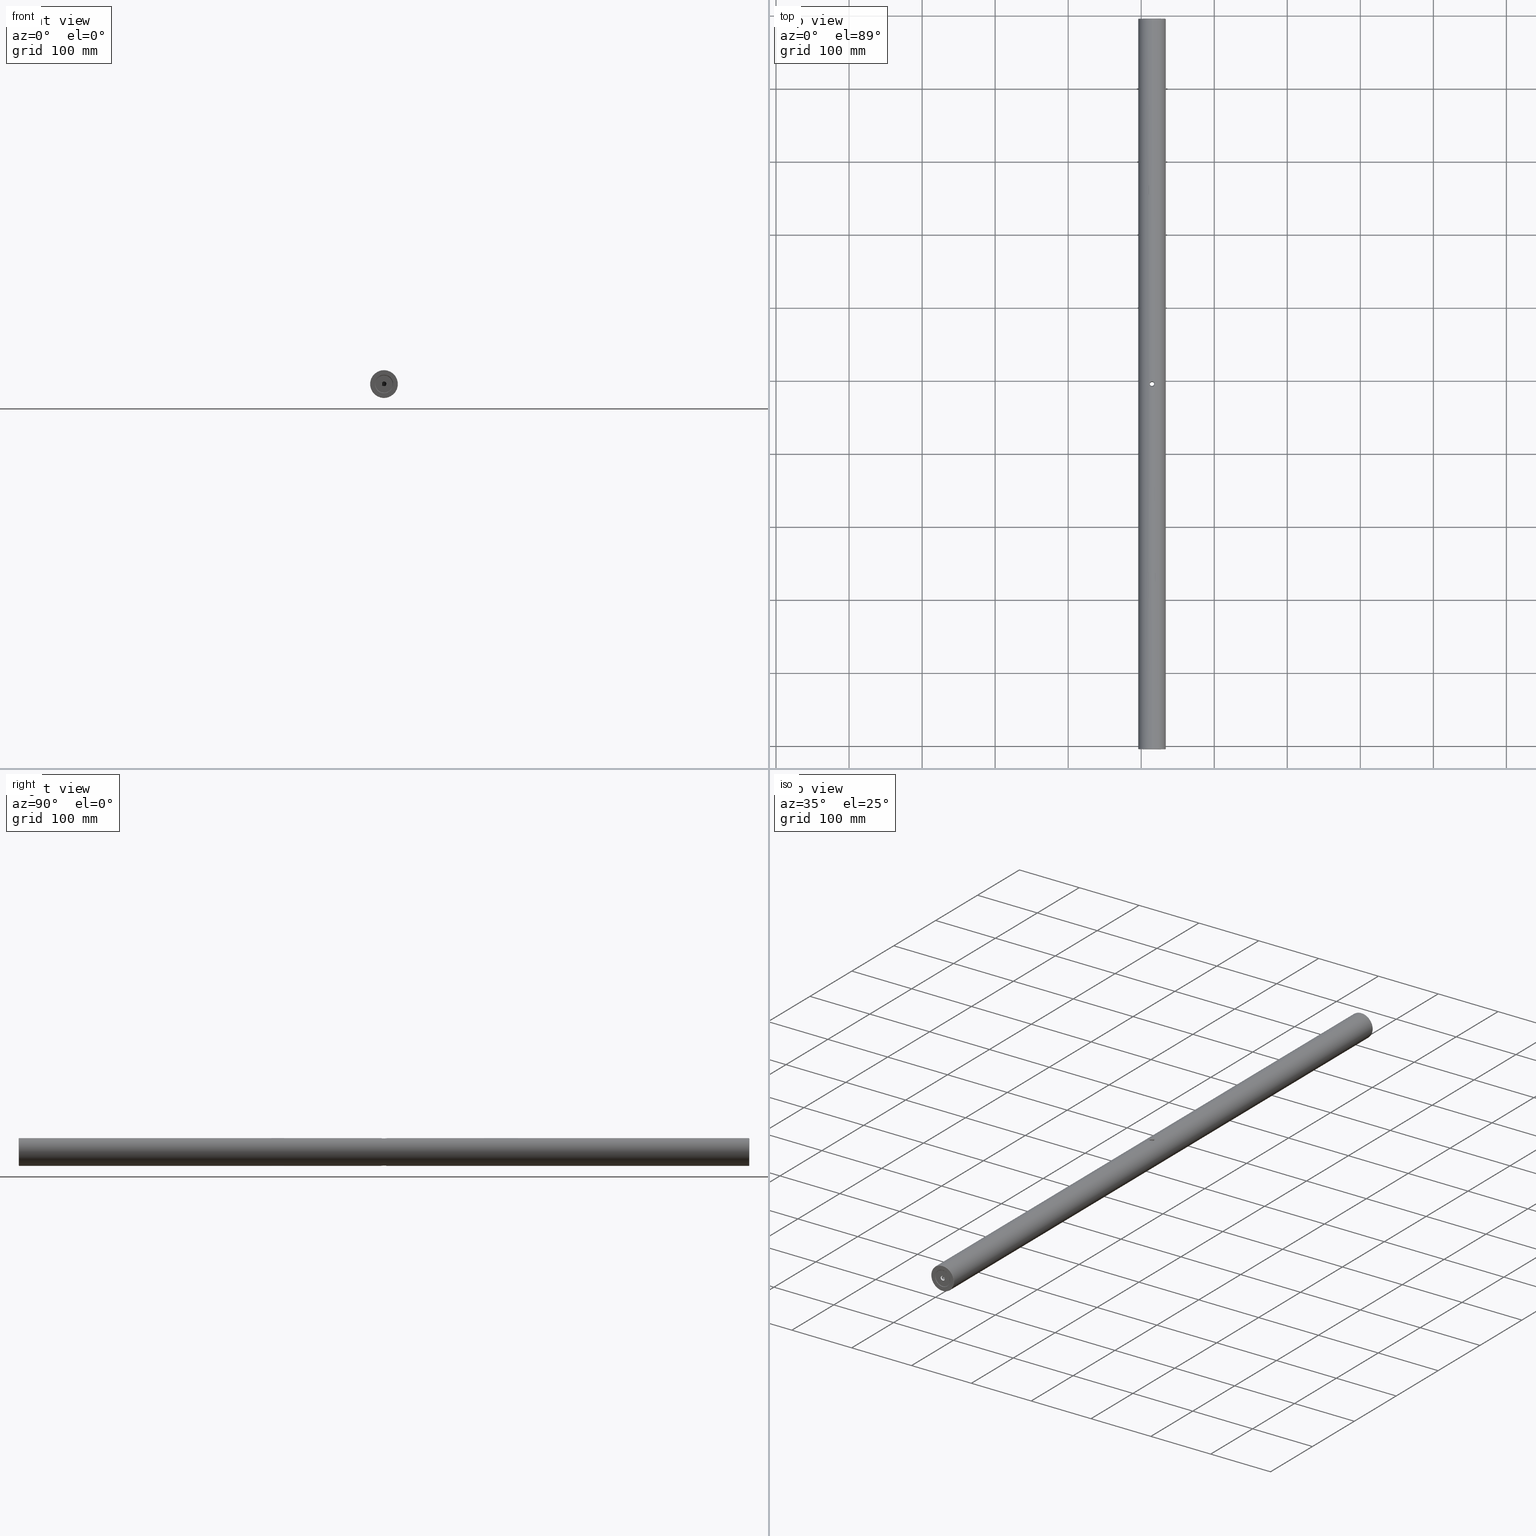
[diagram: canonical four-view strip — front | top / right | iso, engineering-drawing reading convention]
A machine part, canonical four-view strip (front | top / right | iso — engineering-drawing reading convention). The complete STEP part file that produces these views, byte-faithful:
ISO-10303-21;
HEADER;
FILE_DESCRIPTION (( 'STEP AP203' ),
    '1' );
FILE_NAME ('1.4.2.88_ZGH-38-1000.STEP',
    '2022-04-15T00:40:04',
    ( '' ),
    ( '' ),
    'SwSTEP 2.0',
    'SolidWorks 2021',
    '' );
FILE_SCHEMA (( 'CONFIG_CONTROL_DESIGN' ));
ENDSEC;

DATA;
#1 = CARTESIAN_POINT ( 'NONE',  ( -89.04018469271751712, -3.999029654920558841, 381.3866151408238920 ) ) ;
#2 = VERTEX_POINT ( 'NONE', #178 ) ;
#3 = EDGE_CURVE ( 'NONE', #213, #253, #607, .T. ) ;
#4 = DIRECTION ( 'NONE',  ( 0.0000000000000000000, 0.0000000000000000000, 1.000000000000000000 ) ) ;
#5 = CARTESIAN_POINT ( 'NONE',  ( -81.52612773688034054, -3.217498801581724077, 381.3638222746528754 ) ) ;
#6 = LOCAL_TIME ( 8, 40, 4.000000000000000000, #446 ) ;
#7 = ORIENTED_EDGE ( 'NONE', *, *, #139, .T. ) ;
#8 = CYLINDRICAL_SURFACE ( 'NONE', #422, 2.500000000000002220 ) ;
#9 = CALENDAR_DATE ( 2022, 15, 4 ) ;
#10 = B_SPLINE_CURVE_WITH_KNOTS ( 'NONE', 3,
 ( #395, #545, #180, #469, #760, #111, #330, #400, #620, #913, #254, #798, #569, #356, #643, #90, #15, #580 ),
 .UNSPECIFIED., .F., .F.,
 ( 4, 2, 2, 2, 2, 2, 2, 2, 4 ),
 ( 0.02262406464777516613, 0.02341192012650424731, 0.02419977560523332849, 0.02498763108396241314, 0.02577548656269149432, 0.02656334204142057551, 0.02735119752014966016, 0.02813905299887874134, 0.02892690847760782252 ),
 .UNSPECIFIED. ) ;
#11 = CARTESIAN_POINT ( 'NONE',  ( -84.69972560880194123, -8.430702186240790041, 418.9944016194976939 ) ) ;
#12 = CARTESIAN_POINT ( 'NONE',  ( -88.30889371447072733, -1.779107847670829301, 418.7488230436633785 ) ) ;
#13 = CC_DESIGN_PERSON_AND_ORGANIZATION_ASSIGNMENT ( #148, #360, ( #748 ) ) ;
#14 = ORIENTED_EDGE ( 'NONE', *, *, #664, .F. ) ;
#15 = CARTESIAN_POINT ( 'NONE',  ( -85.49146371113677390, -8.461339991674272198, 419.0000000000001705 ) ) ;
#16 = EDGE_CURVE ( 'NONE', #23, #423, #927, .T. ) ;
#17 = CARTESIAN_POINT ( 'NONE',  ( -82.64087668775829343, -1.167056617506569971, 381.1759880288403792 ) ) ;
#18 = FACE_OUTER_BOUND ( 'NONE', #656, .T. ) ;
#19 = AXIS2_PLACEMENT_3D ( 'NONE', #735, #874, #161 ) ;
#20 = DIRECTION ( 'NONE',  ( 0.0000000000000000000, 1.000000000000000000, 0.0000000000000000000 ) ) ;
#21 = CARTESIAN_POINT ( 'NONE',  ( -83.24438980785724596, -7.856924346119599889, 381.1025380199827737 ) ) ;
#22 = ORIENTED_EDGE ( 'NONE', *, *, #89, .F. ) ;
#23 = VERTEX_POINT ( 'NONE', #669 ) ;
#24 = PERSON_AND_ORGANIZATION_ROLE ( 'design_supplier' ) ;
#25 = AXIS2_PLACEMENT_3D ( 'NONE', #159, #757, #530 ) ;
#26 = CARTESIAN_POINT ( 'NONE',  ( -81.41341497436532393, -4.524701080299160516, 418.6133848591761648 ) ) ;
#27 = DESIGN_CONTEXT ( 'detailed design', #214, 'design' ) ;
#28 = DIRECTION ( 'NONE',  ( 1.000000000000000000, 0.0000000000000000000, 0.0000000000000000000 ) ) ;
#29 = EDGE_LOOP ( 'NONE', ( #191, #218, #549, #138, #618 ) ) ;
#30 = COORDINATED_UNIVERSAL_TIME_OFFSET ( 8, 0, .AHEAD. ) ;
#31 = CARTESIAN_POINT ( 'NONE',  ( -85.22679983354142053, 495.2386600083257235, 400.0000000000000000 ) ) ;
#32 = DIRECTION ( 'NONE',  ( 0.0000000000000000000, 1.000000000000000000, 0.0000000000000000000 ) ) ;
#33 = ORIENTED_EDGE ( 'NONE', *, *, #89, .T. ) ;
#34 = ADVANCED_FACE ( 'NONE', ( #322, #18 ), #745, .F. ) ;
#35 = CIRCLE ( 'NONE', #19, 12.50000000000001066 ) ;
#36 = PERSON_AND_ORGANIZATION_ROLE ( 'creator' ) ;
#37 = EDGE_CURVE ( 'NONE', #639, #308, #899, .T. ) ;
#38 = FACE_OUTER_BOUND ( 'NONE', #29, .T. ) ;
#39 = CARTESIAN_POINT ( 'NONE',  ( -87.20501299645449933, -7.859601616013272007, 381.1021099489511244 ) ) ;
#40 = EDGE_LOOP ( 'NONE', ( #45, #499 ) ) ;
#41 = VECTOR ( 'NONE', #528, 1000.000000000000000 ) ;
#42 = CARTESIAN_POINT ( 'NONE',  ( -81.52508446630257311, -5.300719478809650553, 381.3640301049963455 ) ) ;
#43 = VECTOR ( 'NONE', #313, 1000.000000000000000 ) ;
#44 = CARTESIAN_POINT ( 'NONE',  ( -85.22679983354142053, 495.2386600083257235, 396.7499999999997158 ) ) ;
#45 = ORIENTED_EDGE ( 'NONE', *, *, #243, .T. ) ;
#46 = APPROVAL ( #653, 'δָ��' ) ;
#47 = CARTESIAN_POINT ( 'NONE',  ( -82.64087668775827922, -1.167056617506570415, 418.8240119711596208 ) ) ;
#48 = DIRECTION ( 'NONE',  ( 0.0000000000000000000, 0.0000000000000000000, 1.000000000000000000 ) ) ;
#49 = EDGE_CURVE ( 'NONE', #101, #651, #301, .T. ) ;
#50 = CARTESIAN_POINT ( 'NONE',  ( -85.75119431850812646, -8.431120250548380213, 381.0055227819794936 ) ) ;
#51 = EDGE_LOOP ( 'NONE', ( #440, #225 ) ) ;
#52 = CARTESIAN_POINT ( 'NONE',  ( -85.22679983354142053, 485.2386600083257235, 402.5000000000000000 ) ) ;
#53 = LINE ( 'NONE', #338, #87 ) ;
#54 = CARTESIAN_POINT ( 'NONE',  ( -85.22679983354142053, 494.4886600083254393, 400.0000000000000000 ) ) ;
#55 = ORIENTED_EDGE ( 'NONE', *, *, #933, .T. ) ;
#56 = AXIS2_PLACEMENT_3D ( 'NONE', #596, #716, #344 ) ;
#57 = CARTESIAN_POINT ( 'NONE',  ( -85.22679983354142053, -0.06133999167429866894, 419.0000000000000568 ) ) ;
#58 = CARTESIAN_POINT ( 'NONE',  ( -85.22679983354142053, 495.2386600083257235, 402.5000000000000000 ) ) ;
#59 = CARTESIAN_POINT ( 'NONE',  ( -85.22679983354142053, -504.2613399916743333, 418.5000000000000568 ) ) ;
#60 = AXIS2_PLACEMENT_3D ( 'NONE', #754, #235, #28 ) ;
#61 = ORIENTED_EDGE ( 'NONE', *, *, #865, .F. ) ;
#62 = EDGE_CURVE ( 'NONE', #876, #552, #376, .T. ) ;
#63 = FACE_OUTER_BOUND ( 'NONE', #540, .T. ) ;
#64 = CARTESIAN_POINT ( 'NONE',  ( -85.22679983354142053, 495.2386600083257235, 381.0000000000000000 ) ) ;
#65 = CARTESIAN_POINT ( 'NONE',  ( -81.41341497436532393, -4.261339991674277350, 381.3866151408238920 ) ) ;
#66 = ORIENTED_EDGE ( 'NONE', *, *, #219, .F. ) ;
#67 = ADVANCED_FACE ( 'NONE', ( #888 ), #813, .F. ) ;
#68 = DIRECTION ( 'NONE',  ( 0.0000000000000000000, -0.0000000000000000000, 1.000000000000000000 ) ) ;
#69 = PLANE ( 'NONE',  #597 ) ;
#70 = AXIS2_PLACEMENT_3D ( 'NONE', #524, #296, #203 ) ;
#71 = DIRECTION ( 'NONE',  ( 0.0000000000000000000, -1.000000000000000000, 0.0000000000000000000 ) ) ;
#72 = ORIENTED_EDGE ( 'NONE', *, *, #3, .F. ) ;
#73 = CARTESIAN_POINT ( 'NONE',  ( -89.04018469271751712, -4.261339991674283567, 381.3866151408238920 ) ) ;
#74 = DIRECTION ( 'NONE',  ( 0.0000000000000000000, 0.0000000000000000000, -1.000000000000000000 ) ) ;
#75 = CIRCLE ( 'NONE', #614, 2.500000000000002220 ) ;
#76 = CARTESIAN_POINT ( 'NONE',  ( -85.22679983354142053, -4.261339991674281791, 381.0000000000000000 ) ) ;
#77 = ORIENTED_EDGE ( 'NONE', *, *, #865, .T. ) ;
#78 = AXIS2_PLACEMENT_3D ( 'NONE', #362, #655, #144 ) ;
#79 = DATE_AND_TIME ( #518, #713 ) ;
#80 = EDGE_CURVE ( 'NONE', #931, #623, #439, .T. ) ;
#81 = DIRECTION ( 'NONE',  ( 0.0000000000000000000, 1.000000000000000000, 0.0000000000000000000 ) ) ;
#82 = VERTEX_POINT ( 'NONE', #448 ) ;
#83 = CARTESIAN_POINT ( 'NONE',  ( -82.14497683168241338, -1.778754477084883101, 381.2511338613114162 ) ) ;
#84 = ORIENTED_EDGE ( 'NONE', *, *, #880, .F. ) ;
#85 = LINE ( 'NONE', #742, #800 ) ;
#86 = CARTESIAN_POINT ( 'NONE',  ( -85.22679983354142053, -503.7613399916742765, 400.0000000000000000 ) ) ;
#87 = VECTOR ( 'NONE', #756, 1000.000000000000000 ) ;
#88 = ORIENTED_EDGE ( 'NONE', *, *, #723, .F. ) ;
#89 = EDGE_CURVE ( 'NONE', #730, #680, #151, .T. ) ;
#90 = CARTESIAN_POINT ( 'NONE',  ( -85.75119431850812646, -8.431120250548380213, 418.9944772180206769 ) ) ;
#91 = CARTESIAN_POINT ( 'NONE',  ( -83.24199987212081453, -0.6676668308104372063, 381.1028212990075872 ) ) ;
#92 = CARTESIAN_POINT ( 'NONE',  ( -85.22679983354142053, 495.2386600083257235, 412.0000000000000568 ) ) ;
#93 = CARTESIAN_POINT ( 'NONE',  ( -85.22679983354142053, -504.2613399916743333, 400.0000000000000000 ) ) ;
#94 = DATE_TIME_ROLE ( 'classification_date' ) ;
#95 = CARTESIAN_POINT ( 'NONE',  ( -85.22679983354142053, -8.461339991674268646, 419.0000000000000568 ) ) ;
#96 = CARTESIAN_POINT ( 'NONE',  ( -89.04018469271751712, -4.261339991674283567, 418.6133848591761648 ) ) ;
#97 = CIRCLE ( 'NONE', #626, 2.500000000000002220 ) ;
#98 = DATE_AND_TIME ( #399, #294 ) ;
#99 = CARTESIAN_POINT ( 'NONE',  ( -82.63814515825626472, -7.352595677616392322, 418.8236191524364926 ) ) ;
#100 = AXIS2_PLACEMENT_3D ( 'NONE', #251, #835, #259 ) ;
#101 = VERTEX_POINT ( 'NONE', #92 ) ;
#102 = ORIENTED_EDGE ( 'NONE', *, *, #62, .T. ) ;
#103 = MANIFOLD_SURFACE_SHAPE_REPRESENTATION ( '1.4.2.88_ZGH-38-1000', ( #804, #321 ), #511 ) ;
#104 = CIRCLE ( 'NONE', #823, 0.5000000000000004441 ) ;
#105 = CARTESIAN_POINT ( 'NONE',  ( -85.22679983354142053, -4.261339991674283567, 381.0000000000000000 ) ) ;
#106 = ADVANCED_FACE ( 'NONE', ( #523 ), #452, .T. ) ;
#107 = CARTESIAN_POINT ( 'NONE',  ( -85.22679983354142053, 495.2386600083257235, 400.0000000000000000 ) ) ;
#108 = ADVANCED_FACE ( 'NONE', ( #190 ), #906, .T. ) ;
#109 = VERTEX_POINT ( 'NONE', #181 ) ;
#110 = DATE_AND_TIME ( #755, #328 ) ;
#111 = CARTESIAN_POINT ( 'NONE',  ( -88.68189959692058721, -6.053472744008438156, 418.6834286230944713 ) ) ;
#112 = LINE ( 'NONE', #265, #194 ) ;
#113 = VERTEX_POINT ( 'NONE', #627 ) ;
#114 = DIRECTION ( 'NONE',  ( -1.000000000000000000, 0.0000000000000000000, 0.0000000000000000000 ) ) ;
#115 = CARTESIAN_POINT ( 'NONE',  ( -85.22679983354142053, 495.7386600083257235, 400.0000000000000000 ) ) ;
#116 = CC_DESIGN_PERSON_AND_ORGANIZATION_ASSIGNMENT ( #323, #36, ( #667 ) ) ;
#117 = ORIENTED_EDGE ( 'NONE', *, *, #386, .F. ) ;
#118 = ADVANCED_FACE ( 'NONE', ( #622 ), #284, .F. ) ;
#119 = DIRECTION ( 'NONE',  ( -0.7071067811865487940, 0.0000000000000000000, -0.7071067811865463515 ) ) ;
#120 = CC_DESIGN_SECURITY_CLASSIFICATION ( #548, ( #667 ) ) ;
#121 = DIRECTION ( 'NONE',  ( 0.0000000000000000000, -0.7071067811865463515, 0.7071067811865487940 ) ) ;
#122 = AXIS2_PLACEMENT_3D ( 'NONE', #766, #551, #195 ) ;
#123 = CARTESIAN_POINT ( 'NONE',  ( -85.22679983354142053, -503.7613399916742765, 412.0000000000000568 ) ) ;
#124 = ORIENTED_EDGE ( 'NONE', *, *, #470, .T. ) ;
#125 = CARTESIAN_POINT ( 'NONE',  ( -83.24199987212080032, -0.6676668308104377614, 418.8971787009924697 ) ) ;
#126 = DIRECTION ( 'NONE',  ( 0.0000000000000000000, 1.000000000000000000, 0.0000000000000000000 ) ) ;
#127 = CARTESIAN_POINT ( 'NONE',  ( -89.04018469271751712, -4.261339991674283567, 381.3866151408238920 ) ) ;
#128 = ORIENTED_EDGE ( 'NONE', *, *, #443, .T. ) ;
#129 = CARTESIAN_POINT ( 'NONE',  ( -85.22679983354142053, -504.2613399916743333, 400.0000000000000000 ) ) ;
#130 = DIRECTION ( 'NONE',  ( 0.0000000000000000000, 0.0000000000000000000, 1.000000000000000000 ) ) ;
#131 = CARTESIAN_POINT ( 'NONE',  ( -85.22679983354142053, -503.0113399916740491, 400.0000000000000000 ) ) ;
#132 = ORIENTED_EDGE ( 'NONE', *, *, #641, .T. ) ;
#133 = AXIS2_PLACEMENT_3D ( 'NONE', #941, #708, #725 ) ;
#134 = LINE ( 'NONE', #769, #201 ) ;
#135 = CARTESIAN_POINT ( 'NONE',  ( -88.22679983354142053, -4.261339991674281791, 381.0000000000000000 ) ) ;
#136 = CARTESIAN_POINT ( 'NONE',  ( -88.57090845425022962, -2.230408319438852871, 381.2961339358312216 ) ) ;
#137 = EDGE_CURVE ( 'NONE', #948, #454, #773, .T. ) ;
#138 = ORIENTED_EDGE ( 'NONE', *, *, #252, .F. ) ;
#139 = EDGE_CURVE ( 'NONE', #113, #585, #112, .T. ) ;
#140 = DIRECTION ( 'NONE',  ( -0.0000000000000000000, -1.000000000000000000, -0.0000000000000000000 ) ) ;
#141 = FACE_OUTER_BOUND ( 'NONE', #256, .T. ) ;
#142 = ORIENTED_EDGE ( 'NONE', *, *, #386, .T. ) ;
#143 = CARTESIAN_POINT ( 'NONE',  ( -85.22679983354142053, 495.2386600083257235, 400.0000000000000000 ) ) ;
#144 = DIRECTION ( 'NONE',  ( 0.0000000000000000000, 0.0000000000000000000, 1.000000000000000000 ) ) ;
#145 = VERTEX_POINT ( 'NONE', #59 ) ;
#146 = APPROVAL ( #385, 'δָ��' ) ;
#147 = EDGE_CURVE ( 'NONE', #907, #332, #938, .T. ) ;
#148 = PERSON_AND_ORGANIZATION ( #635, #156 ) ;
#149 = CARTESIAN_POINT ( 'NONE',  ( -85.48903342595741606, -0.06133999167429705912, 380.9999999999999432 ) ) ;
#150 = EDGE_LOOP ( 'NONE', ( #809, #722, #840, #718, #295 ) ) ;
#151 = CIRCLE ( 'NONE', #264, 19.00000000000001776 ) ;
#152 = CALENDAR_DATE ( 2022, 15, 4 ) ;
#153 = FACE_OUTER_BOUND ( 'NONE', #789, .T. ) ;
#154 = ORIENTED_EDGE ( 'NONE', *, *, #329, .T. ) ;
#155 = APPROVAL_ROLE ( '' ) ;
#156 = ORGANIZATION ( 'δָ��', 'δָ��', '' ) ;
#157 = LINE ( 'NONE', #824, #41 ) ;
#158 = ADVANCED_FACE ( 'NONE', ( #326 ), #363, .T. ) ;
#159 = CARTESIAN_POINT ( 'NONE',  ( -85.22679983354142053, -493.7613399916742765, 400.0000000000000000 ) ) ;
#160 = CARTESIAN_POINT ( 'NONE',  ( -85.22679983354142053, -503.7613399916742765, 402.5000000000000000 ) ) ;
#161 = DIRECTION ( 'NONE',  ( 0.0000000000000000000, 0.0000000000000000000, 1.000000000000000000 ) ) ;
#162 = FACE_OUTER_BOUND ( 'NONE', #915, .T. ) ;
#163 = CONICAL_SURFACE ( 'NONE', #249, 12.50000000000001066, 0.7853981633974500554 ) ;
#164 = DIRECTION ( 'NONE',  ( -0.0000000000000000000, -1.000000000000000000, -0.0000000000000000000 ) ) ;
#165 = ORIENTED_EDGE ( 'NONE', *, *, #610, .F. ) ;
#166 = DIRECTION ( 'NONE',  ( 0.0000000000000000000, 0.0000000000000000000, 1.000000000000000000 ) ) ;
#167 = VECTOR ( 'NONE', #843, 1000.000000000000000 ) ;
#168 = DIRECTION ( 'NONE',  ( -1.000000000000000000, 0.0000000000000000000, 0.0000000000000000000 ) ) ;
#169 = CARTESIAN_POINT ( 'NONE',  ( -88.86084895124396610, -2.964938769552044828, 418.6494481890263728 ) ) ;
#170 = ORIENTED_EDGE ( 'NONE', *, *, #204, .T. ) ;
#171 = CARTESIAN_POINT ( 'NONE',  ( -85.22679983354142053, 495.2386600083257235, 381.5000000000000000 ) ) ;
#172 = DIRECTION ( 'NONE',  ( 1.000000000000000000, 0.0000000000000000000, 0.0000000000000000000 ) ) ;
#173 = ORIENTED_EDGE ( 'NONE', *, *, #49, .F. ) ;
#174 = PERSON_AND_ORGANIZATION ( #635, #156 ) ;
#175 = EDGE_CURVE ( 'NONE', #413, #2, #212, .T. ) ;
#176 = DIRECTION ( 'NONE',  ( 0.0000000000000000000, 0.0000000000000000000, -1.000000000000000000 ) ) ;
#177 = AXIS2_PLACEMENT_3D ( 'NONE', #878, #221, #519 ) ;
#178 = CARTESIAN_POINT ( 'NONE',  ( -85.22679983354142053, -504.2613399916743333, 387.5000000000000000 ) ) ;
#179 = EDGE_LOOP ( 'NONE', ( #408, #33, #377, #896, #314, #921, #571, #436, #207, #674 ) ) ;
#180 = CARTESIAN_POINT ( 'NONE',  ( -89.01782207825233684, -4.784939022142112641, 418.6180084472278509 ) ) ;
#181 = CARTESIAN_POINT ( 'NONE',  ( -85.22679983354142053, -503.7613399916742765, 396.7499999999997158 ) ) ;
#182 = ORIENTED_EDGE ( 'NONE', *, *, #232, .F. ) ;
#183 = CARTESIAN_POINT ( 'NONE',  ( -85.22679983354142053, -504.2613399916743333, 412.5000000000000568 ) ) ;
#184 = CARTESIAN_POINT ( 'NONE',  ( -88.86003986455601478, -5.560364975193093251, 381.3503944715658349 ) ) ;
#185 = EDGE_CURVE ( 'NONE', #872, #247, #579, .T. ) ;
#186 = VERTEX_POINT ( 'NONE', #44 ) ;
#187 = VECTOR ( 'NONE', #230, 1000.000000000000000 ) ;
#188 = CARTESIAN_POINT ( 'NONE',  ( -81.41341497436532393, -4.261339991674279126, 418.6133848591761648 ) ) ;
#189 = LINE ( 'NONE', #770, #943 ) ;
#190 = FACE_OUTER_BOUND ( 'NONE', #272, .T. ) ;
#191 = ORIENTED_EDGE ( 'NONE', *, *, #848, .F. ) ;
#192 = DIRECTION ( 'NONE',  ( -0.0000000000000000000, 1.000000000000000000, -0.0000000000000000000 ) ) ;
#193 = CARTESIAN_POINT ( 'NONE',  ( -85.22679983354142053, 495.2386600083257235, 418.5000000000000568 ) ) ;
#194 = VECTOR ( 'NONE', #402, 1000.000000000000000 ) ;
#195 = DIRECTION ( 'NONE',  ( 0.0000000000000000000, 0.0000000000000000000, 1.000000000000000000 ) ) ;
#196 = EDGE_LOOP ( 'NONE', ( #506, #364, #928, #795 ) ) ;
#197 = DIRECTION ( 'NONE',  ( 0.0000000000000000000, 0.0000000000000000000, -1.000000000000000000 ) ) ;
#198 = FACE_BOUND ( 'NONE', #51, .T. ) ;
#199 = CARTESIAN_POINT ( 'NONE',  ( -88.30796467933343763, -6.745178320961991325, 381.2510173717518569 ) ) ;
#200 = VERTEX_POINT ( 'NONE', #123 ) ;
#201 = VECTOR ( 'NONE', #852, 1000.000000000000000 ) ;
#202 = CARTESIAN_POINT ( 'NONE',  ( -82.29571650229409840, -1.565921010254242685, 418.7733634629371409 ) ) ;
#203 = DIRECTION ( 'NONE',  ( 0.0000000000000000000, 0.0000000000000000000, 1.000000000000000000 ) ) ;
#204 = EDGE_CURVE ( 'NONE', #623, #287, #556, .T. ) ;
#205 = DIRECTION ( 'NONE',  ( -0.7071067811865487940, 0.0000000000000000000, 0.7071067811865463515 ) ) ;
#206 = EDGE_CURVE ( 'NONE', #145, #585, #104, .T. ) ;
#207 = ORIENTED_EDGE ( 'NONE', *, *, #527, .F. ) ;
#208 = CONICAL_SURFACE ( 'NONE', #70, 12.50000000000001066, 0.7853981633974500554 ) ;
#209 = DIRECTION ( 'NONE',  ( -1.000000000000000000, 0.0000000000000000000, 0.0000000000000000000 ) ) ;
#210 = DIRECTION ( 'NONE',  ( 0.0000000000000000000, 0.0000000000000000000, 1.000000000000000000 ) ) ;
#211 = DIRECTION ( 'NONE',  ( 0.0000000000000000000, 1.000000000000000000, 0.0000000000000000000 ) ) ;
#212 = CIRCLE ( 'NONE', #484, 12.50000000000001066 ) ;
#213 = VERTEX_POINT ( 'NONE', #417 ) ;
#214 = APPLICATION_CONTEXT ( 'configuration controlled 3d designs of mechanical parts and assemblies' ) ;
#215 =( LENGTH_UNIT ( ) NAMED_UNIT ( * ) SI_UNIT ( .MILLI., .METRE. ) );
#216 = FACE_OUTER_BOUND ( 'NONE', #196, .T. ) ;
#217 = CARTESIAN_POINT ( 'NONE',  ( -89.42679983354143758, -4.261339991674283567, 419.0000000000000568 ) ) ;
#218 = ORIENTED_EDGE ( 'NONE', *, *, #811, .F. ) ;
#219 = EDGE_CURVE ( 'NONE', #200, #277, #868, .T. ) ;
#220 = CONICAL_SURFACE ( 'NONE', #889, 4.200000000000009059, 0.7853981633974500554 ) ;
#221 = DIRECTION ( 'NONE',  ( -0.0000000000000000000, -1.000000000000000000, -0.0000000000000000000 ) ) ;
#222 = ORIENTED_EDGE ( 'NONE', *, *, #848, .T. ) ;
#223 = CIRCLE ( 'NONE', #100, 12.50000000000001066 ) ;
#224 = CARTESIAN_POINT ( 'NONE',  ( -87.21008987037792792, -0.6665384523181927534, 381.1026504008992788 ) ) ;
#225 = ORIENTED_EDGE ( 'NONE', *, *, #397, .F. ) ;
#226 = AXIS2_PLACEMENT_3D ( 'NONE', #54, #331, #761 ) ;
#227 = DIRECTION ( 'NONE',  ( 1.000000000000000000, 0.0000000000000000000, 0.0000000000000000000 ) ) ;
#228 = EDGE_CURVE ( 'NONE', #287, #351, #345, .T. ) ;
#229 = CARTESIAN_POINT ( 'NONE',  ( -85.22679983354142053, -4.261339991674283567, 381.0000000000000000 ) ) ;
#230 = DIRECTION ( 'NONE',  ( -0.0000000000000000000, -0.0000000000000000000, 1.000000000000000000 ) ) ;
#231 = PERSON_AND_ORGANIZATION ( #635, #156 ) ;
#232 = EDGE_CURVE ( 'NONE', #101, #712, #453, .T. ) ;
#233 = AXIS2_PLACEMENT_3D ( 'NONE', #449, #792, #74 ) ;
#234 = CARTESIAN_POINT ( 'NONE',  ( -83.46511704992532543, -0.5280370949836370453, 381.0803408399271461 ) ) ;
#235 = DIRECTION ( 'NONE',  ( -0.0000000000000000000, -0.0000000000000000000, 1.000000000000000000 ) ) ;
#236 = CARTESIAN_POINT ( 'NONE',  ( -85.22679983354142053, -4.261339991674283567, 419.0000000000000568 ) ) ;
#237 = CARTESIAN_POINT ( 'NONE',  ( -81.41341497436532393, -4.261339991674279126, 418.6133848591761648 ) ) ;
#238 = AXIS2_PLACEMENT_3D ( 'NONE', #405, #126, #696 ) ;
#239 = CARTESIAN_POINT ( 'NONE',  ( -82.82757549099136440, -7.533607839044134558, 418.8490779973516851 ) ) ;
#240 = EDGE_CURVE ( 'NONE', #876, #308, #930, .T. ) ;
#241 = CARTESIAN_POINT ( 'NONE',  ( -86.26440072079715549, -0.2103516366053766184, 418.9733999019272801 ) ) ;
#242 = ORIENTED_EDGE ( 'NONE', *, *, #3, .T. ) ;
#243 = EDGE_CURVE ( 'NONE', #423, #23, #393, .T. ) ;
#244 = DIRECTION ( 'NONE',  ( -0.0000000000000000000, -0.0000000000000000000, -1.000000000000000000 ) ) ;
#245 = CONICAL_SURFACE ( 'NONE', #814, 4.200000000000009059, 0.7853981633974500554 ) ;
#246 = CARTESIAN_POINT ( 'NONE',  ( -87.21008987037792792, -0.6665384523181927534, 418.8973495991008917 ) ) ;
#247 = VERTEX_POINT ( 'NONE', #497 ) ;
#248 = DIRECTION ( 'NONE',  ( 0.0000000000000000000, 0.0000000000000000000, 1.000000000000000000 ) ) ;
#249 = AXIS2_PLACEMENT_3D ( 'NONE', #486, #630, #846 ) ;
#250 = DIRECTION ( 'NONE',  ( -0.0000000000000000000, -1.000000000000000000, -0.0000000000000000000 ) ) ;
#251 = CARTESIAN_POINT ( 'NONE',  ( -85.22679983354142053, 495.7386600083257235, 400.0000000000000000 ) ) ;
#252 = EDGE_CURVE ( 'NONE', #285, #907, #861, .T. ) ;
#253 = VERTEX_POINT ( 'NONE', #944 ) ;
#254 = CARTESIAN_POINT ( 'NONE',  ( -87.61973751830021229, -7.539048035020909921, 418.8498653824453868 ) ) ;
#255 = CARTESIAN_POINT ( 'NONE',  ( -86.98410511525524669, -7.996885633606630961, 381.0799701750693771 ) ) ;
#256 = EDGE_LOOP ( 'NONE', ( #945, #84, #588, #706 ) ) ;
#257 = AXIS2_PLACEMENT_3D ( 'NONE', #526, #586, #227 ) ;
#258 = DIRECTION ( 'NONE',  ( -0.0000000000000000000, -0.0000000000000000000, 1.000000000000000000 ) ) ;
#259 = DIRECTION ( 'NONE',  ( 0.0000000000000000000, 0.0000000000000000000, 1.000000000000000000 ) ) ;
#260 = CARTESIAN_POINT ( 'NONE',  ( -87.81196888986544025, -7.356176429533654471, 381.1758971842136248 ) ) ;
#261 = ORIENTED_EDGE ( 'NONE', *, *, #796, .F. ) ;
#262 = CARTESIAN_POINT ( 'NONE',  ( -81.43639937781144056, -3.732814026306843225, 418.6181352063767918 ) ) ;
#263 = LINE ( 'NONE', #475, #589 ) ;
#264 = AXIS2_PLACEMENT_3D ( 'NONE', #107, #164, #818 ) ;
#265 = CARTESIAN_POINT ( 'NONE',  ( -85.22679983354142053, 495.7386600083257235, 419.0000000000000568 ) ) ;
#266 = ORIENTED_EDGE ( 'NONE', *, *, #299, .F. ) ;
#267 = ADVANCED_FACE ( 'NONE', ( #286 ), #881, .T. ) ;
#268 = ADVANCED_FACE ( 'NONE', ( #581 ), #788, .F. ) ;
#269 = DIRECTION ( 'NONE',  ( -0.0000000000000000000, 1.000000000000000000, -0.0000000000000000000 ) ) ;
#270 = LINE ( 'NONE', #275, #739 ) ;
#271 = CARTESIAN_POINT ( 'NONE',  ( -85.22679983354142053, -503.7613399916742765, 400.0000000000000000 ) ) ;
#272 = EDGE_LOOP ( 'NONE', ( #633, #702, #61, #698, #7, #879, #383, #142, #154, #88 ) ) ;
#273 = CIRCLE ( 'NONE', #904, 2.500000000000002220 ) ;
#274 = CARTESIAN_POINT ( 'NONE',  ( -85.22679983354142053, 495.7386600083257235, 381.0000000000000000 ) ) ;
#275 = CARTESIAN_POINT ( 'NONE',  ( -82.22679983354142053, -4.261339991674281791, 381.0000000000000000 ) ) ;
#276 = CARTESIAN_POINT ( 'NONE',  ( -88.15730954550808462, -1.565196067254975176, 381.2265485059697880 ) ) ;
#277 = VERTEX_POINT ( 'NONE', #430 ) ;
#278 = APPROVAL ( #672, 'δָ��' ) ;
#279 = B_SPLINE_CURVE_WITH_KNOTS ( 'NONE', 3,
 ( #188, #940, #262, #775, #410, #355, #699, #424, #202, #47, #779, #125, #862, #568, #564, #494, #845, #57 ),
 .UNSPECIFIED., .F., .F.,
 ( 4, 2, 2, 2, 2, 2, 2, 2, 4 ),
 ( 0.01002925114519557376, 0.01081737704504791807, 0.01160550294490026065, 0.01239362884475260496, 0.01318175474460494753, 0.01396988064445729011, 0.01475800654430963268, 0.01554613244416197526, 0.01633425834401431784 ),
 .UNSPECIFIED. ) ;
#280 = CARTESIAN_POINT ( 'NONE',  ( -85.22679983354142053, -4.261339991674283567, 419.0000000000000568 ) ) ;
#281 = CARTESIAN_POINT ( 'NONE',  ( -85.22679983354142053, -0.06133999167429866894, 419.0000000000000568 ) ) ;
#282 = CC_DESIGN_APPROVAL ( #278, ( #667 ) ) ;
#283 = ADVANCED_FACE ( 'NONE', ( #859 ), #516, .T. ) ;
#284 = CONICAL_SURFACE ( 'NONE', #409, 12.50000000000001066, 0.7853981633974500554 ) ;
#285 = VERTEX_POINT ( 'NONE', #799 ) ;
#286 = FACE_OUTER_BOUND ( 'NONE', #688, .T. ) ;
#287 = VERTEX_POINT ( 'NONE', #426 ) ;
#288 = APPLICATION_PROTOCOL_DEFINITION ( 'international standard', 'config_control_design', 1994, #603 ) ;
#289 = DIRECTION ( 'NONE',  ( 0.0000000000000000000, 0.0000000000000000000, 1.000000000000000000 ) ) ;
#290 = ORIENTED_EDGE ( 'NONE', *, *, #352, .T. ) ;
#291 = CIRCLE ( 'NONE', #56, 2.500000000000002220 ) ;
#292 = AXIS2_PLACEMENT_3D ( 'NONE', #638, #729, #289 ) ;
#293 = CARTESIAN_POINT ( 'NONE',  ( -85.22679983354142053, -503.0113399916740491, 402.5000000000000000 ) ) ;
#294 = LOCAL_TIME ( 8, 40, 4.000000000000000000, #30 ) ;
#295 = ORIENTED_EDGE ( 'NONE', *, *, #354, .T. ) ;
#296 = DIRECTION ( 'NONE',  ( -0.0000000000000000000, -1.000000000000000000, -0.0000000000000000000 ) ) ;
#297 = EDGE_CURVE ( 'NONE', #277, #200, #432, .T. ) ;
#298 = B_SPLINE_CURVE_WITH_KNOTS ( 'NONE', 3,
 ( #65, #644, #937, #5, #668, #369, #374, #83, #534, #17, #661, #91, #234, #682, #744, #387, #817, #306 ),
 .UNSPECIFIED., .F., .F.,
 ( 4, 2, 2, 2, 2, 2, 2, 2, 4 ),
 ( 0.01002925114519557549, 0.01081737704504791807, 0.01160550294490026065, 0.01239362884475260496, 0.01318175474460494753, 0.01396988064445729011, 0.01475800654430963268, 0.01554613244416197526, 0.01633425834401431784 ),
 .UNSPECIFIED. ) ;
#299 = EDGE_CURVE ( 'NONE', #680, #730, #873, .T. ) ;
#300 = DIRECTION ( 'NONE',  ( 0.0000000000000000000, 0.0000000000000000000, 1.000000000000000000 ) ) ;
#301 = LINE ( 'NONE', #832, #43 ) ;
#302 = ORIENTED_EDGE ( 'NONE', *, *, #455, .F. ) ;
#303 = DIRECTION ( 'NONE',  ( -0.0000000000000000000, -0.0000000000000000000, 1.000000000000000000 ) ) ;
#304 = MECHANICAL_CONTEXT ( 'NONE', #603, 'mechanical' ) ;
#305 = CIRCLE ( 'NONE', #645, 18.50000000000001776 ) ;
#306 = CARTESIAN_POINT ( 'NONE',  ( -85.22679983354142053, -0.06133999167429866894, 381.0000000000000000 ) ) ;
#307 = CARTESIAN_POINT ( 'NONE',  ( -86.98394057735728779, -0.5256534841595331686, 418.9200517613895727 ) ) ;
#308 = VERTEX_POINT ( 'NONE', #808 ) ;
#309 = DIRECTION ( 'NONE',  ( 0.0000000000000000000, 0.0000000000000000000, 1.000000000000000000 ) ) ;
#310 = CC_DESIGN_DATE_AND_TIME_ASSIGNMENT ( #110, #94, ( #548 ) ) ;
#311 = CARTESIAN_POINT ( 'NONE',  ( -82.82757549099136440, -7.533607839044134558, 381.1509220026484286 ) ) ;
#312 = ADVANCED_FACE ( 'NONE', ( #153 ), #604, .F. ) ;
#313 = DIRECTION ( 'NONE',  ( 0.0000000000000000000, 0.7071067811865463515, 0.7071067811865487940 ) ) ;
#314 = ORIENTED_EDGE ( 'NONE', *, *, #147, .T. ) ;
#315 = AXIS2_PLACEMENT_3D ( 'NONE', #687, #375, #737 ) ;
#316 = COORDINATED_UNIVERSAL_TIME_OFFSET ( 8, 0, .AHEAD. ) ;
#317 = CARTESIAN_POINT ( 'NONE',  ( -81.59285872774556481, -5.558021363143371474, 418.6494685149854149 ) ) ;
#318 = DIRECTION ( 'NONE',  ( 0.0000000000000000000, 0.0000000000000000000, 1.000000000000000000 ) ) ;
#319 = PERSON_AND_ORGANIZATION_ROLE ( 'classification_officer' ) ;
#320 = CYLINDRICAL_SURFACE ( 'NONE', #341, 2.500000000000002220 ) ;
#321 = AXIS2_PLACEMENT_3D ( 'NONE', #802, #4, #949 ) ;
#322 = FACE_BOUND ( 'NONE', #562, .T. ) ;
#323 = PERSON_AND_ORGANIZATION ( #635, #156 ) ;
#324 = FACE_OUTER_BOUND ( 'NONE', #514, .T. ) ;
#325 = VECTOR ( 'NONE', #857, 1000.000000000000000 ) ;
#326 = FACE_OUTER_BOUND ( 'NONE', #398, .T. ) ;
#327 = ORIENTED_EDGE ( 'NONE', *, *, #228, .T. ) ;
#328 = LOCAL_TIME ( 8, 40, 4.000000000000000000, #316 ) ;
#329 = EDGE_CURVE ( 'NONE', #403, #285, #298, .T. ) ;
#330 = CARTESIAN_POINT ( 'NONE',  ( -88.57188684336087192, -6.290580469037319489, 418.7036980113034588 ) ) ;
#331 = DIRECTION ( 'NONE',  ( 0.0000000000000000000, 1.000000000000000000, 0.0000000000000000000 ) ) ;
#332 = VERTEX_POINT ( 'NONE', #883 ) ;
#333 = CARTESIAN_POINT ( 'NONE',  ( -85.22679983354142053, 495.2386600083257235, 403.2500000000003411 ) ) ;
#334 = CARTESIAN_POINT ( 'NONE',  ( -85.22679983354142053, 494.4886600083254393, 397.5000000000000000 ) ) ;
#335 = DIRECTION ( 'NONE',  ( -1.000000000000000000, 0.0000000000000000000, 0.0000000000000000000 ) ) ;
#336 = ORIENTED_EDGE ( 'NONE', *, *, #894, .T. ) ;
#337 = FACE_OUTER_BOUND ( 'NONE', #367, .T. ) ;
#338 = CARTESIAN_POINT ( 'NONE',  ( -85.22679983354142053, 495.2386600083257235, 397.5000000000000000 ) ) ;
#339 = CARTESIAN_POINT ( 'NONE',  ( -86.26127162816044347, -8.313090059122508535, 381.0264652089310289 ) ) ;
#340 = EDGE_CURVE ( 'NONE', #247, #585, #498, .T. ) ;
#341 = AXIS2_PLACEMENT_3D ( 'NONE', #565, #560, #905 ) ;
#342 = ORIENTED_EDGE ( 'NONE', *, *, #557, .F. ) ;
#343 = DIRECTION ( 'NONE',  ( 0.0000000000000000000, 0.0000000000000000000, 1.000000000000000000 ) ) ;
#344 = DIRECTION ( 'NONE',  ( 0.0000000000000000000, 0.0000000000000000000, -1.000000000000000000 ) ) ;
#345 = CIRCLE ( 'NONE', #520, 2.500000000000002220 ) ;
#346 = CARTESIAN_POINT ( 'NONE',  ( -88.68258810927235913, -2.470732174027440387, 381.3166984144028220 ) ) ;
#347 = ORIENTED_EDGE ( 'NONE', *, *, #80, .F. ) ;
#348 = DIRECTION ( 'NONE',  ( 0.7071067811865487940, 8.659560562354948882E-17, -0.7071067811865463515 ) ) ;
#349 = DIRECTION ( 'NONE',  ( -0.0000000000000000000, -1.000000000000000000, -0.0000000000000000000 ) ) ;
#350 = CARTESIAN_POINT ( 'NONE',  ( -85.74900820764774778, -0.09101629208817690886, 381.0054266209082812 ) ) ;
#351 = VERTEX_POINT ( 'NONE', #293 ) ;
#352 = EDGE_CURVE ( 'NONE', #109, #82, #406, .T. ) ;
#353 = AXIS2_PLACEMENT_3D ( 'NONE', #934, #192, #197 ) ;
#354 = EDGE_CURVE ( 'NONE', #113, #740, #932, .T. ) ;
#355 = CARTESIAN_POINT ( 'NONE',  ( -81.77187972696634688, -2.468561370532886379, 418.6834641745472823 ) ) ;
#356 = CARTESIAN_POINT ( 'NONE',  ( -86.51381476393198966, -8.223524199725767758, 418.9578280137350816 ) ) ;
#357 = CARTESIAN_POINT ( 'NONE',  ( -86.26440072079715549, -0.2103516366053766184, 381.0266000980727767 ) ) ;
#358 = EDGE_LOOP ( 'NONE', ( #66, #595 ) ) ;
#359 = CIRCLE ( 'NONE', #631, 19.00000000000001776 ) ;
#360 = PERSON_AND_ORGANIZATION_ROLE ( 'design_owner' ) ;
#361 = DIRECTION ( 'NONE',  ( 0.0000000000000000000, -1.000000000000000000, 0.0000000000000000000 ) ) ;
#362 = CARTESIAN_POINT ( 'NONE',  ( -85.22679983354142053, 495.2386600083257235, 400.0000000000000000 ) ) ;
#363 = TOROIDAL_SURFACE ( 'NONE', #122, 18.50000000000000000, 0.5000000000000000000 ) ;
#364 = ORIENTED_EDGE ( 'NONE', *, *, #455, .T. ) ;
#365 = APPROVAL_ROLE ( '' ) ;
#366 = CARTESIAN_POINT ( 'NONE',  ( -87.81247192360183362, -1.166828721202192165, 381.1759550570734518 ) ) ;
#367 = EDGE_LOOP ( 'NONE', ( #102, #778, #77, #478, #473 ) ) ;
#368 = CYLINDRICAL_SURFACE ( 'NONE', #555, 2.500000000000002220 ) ;
#369 = CARTESIAN_POINT ( 'NONE',  ( -81.77187972696631846, -2.468561370532884602, 381.3165358254529451 ) ) ;
#370 = EDGE_LOOP ( 'NONE', ( #342, #939, #170, #327 ) ) ;
#371 = EDGE_CURVE ( 'NONE', #552, #740, #157, .T. ) ;
#372 = EDGE_CURVE ( 'NONE', #680, #23, #819, .T. ) ;
#373 = CONICAL_SURFACE ( 'NONE', #864, 4.200000000000009059, 0.7853981633974500554 ) ;
#374 = CARTESIAN_POINT ( 'NONE',  ( -81.88335953815429491, -2.229144387579305775, 381.2960158925316705 ) ) ;
#375 = DIRECTION ( 'NONE',  ( -0.0000000000000000000, -0.0000000000000000000, -1.000000000000000000 ) ) ;
#376 = CIRCLE ( 'NONE', #536, 3.000000000000002665 ) ;
#377 = ORIENTED_EDGE ( 'NONE', *, *, #723, .T. ) ;
#378 = CARTESIAN_POINT ( 'NONE',  ( -85.22679983354142053, -503.7613399916743901, 419.0000000000000568 ) ) ;
#379 = DATE_TIME_ROLE ( 'creation_date' ) ;
#380 = DIRECTION ( 'NONE',  ( -0.0000000000000000000, 1.000000000000000000, -0.0000000000000000000 ) ) ;
#381 = CARTESIAN_POINT ( 'NONE',  ( -87.62330431072487613, -0.9868626275845048257, 418.8494039038823757 ) ) ;
#382 = ADVANCED_FACE ( 'NONE', ( #162 ), #373, .F. ) ;
#383 = ORIENTED_EDGE ( 'NONE', *, *, #781, .F. ) ;
#384 = FACE_OUTER_BOUND ( 'NONE', #150, .T. ) ;
#385 = APPROVAL_STATUS ( 'not_yet_approved' ) ;
#386 = EDGE_CURVE ( 'NONE', #332, #403, #500, .T. ) ;
#387 = CARTESIAN_POINT ( 'NONE',  ( -84.69707466841040855, -0.09239770115273913953, 381.0056742590844578 ) ) ;
#388 = CARTESIAN_POINT ( 'NONE',  ( -85.22679983354142053, -4.261339991674283567, 417.8000000000000114 ) ) ;
#389 = CARTESIAN_POINT ( 'NONE',  ( -82.14309753980985818, -6.741247472261910012, 418.7485603540634429 ) ) ;
#390 = AXIS2_PLACEMENT_3D ( 'NONE', #76, #438, #435 ) ;
#391 = CARTESIAN_POINT ( 'NONE',  ( -85.22679983354142053, 495.7386600083257235, 400.0000000000000000 ) ) ;
#392 = EDGE_LOOP ( 'NONE', ( #14, #855, #774, #510 ) ) ;
#393 = CIRCLE ( 'NONE', #634, 18.50000000000001776 ) ;
#394 = APPROVAL_DATE_TIME ( #98, #146 ) ;
#395 = CARTESIAN_POINT ( 'NONE',  ( -89.04018469271751712, -4.261339991674283567, 418.6133848591761648 ) ) ;
#396 = ORIENTED_EDGE ( 'NONE', *, *, #243, .F. ) ;
#397 = EDGE_CURVE ( 'NONE', #901, #651, #223, .T. ) ;
#398 = EDGE_LOOP ( 'NONE', ( #591, #582, #670, #608 ) ) ;
#399 = CALENDAR_DATE ( 2022, 15, 4 ) ;
#400 = CARTESIAN_POINT ( 'NONE',  ( -88.30796467933343763, -6.745178320961991325, 418.7489826282481999 ) ) ;
#401 = AXIS2_PLACEMENT_3D ( 'NONE', #703, #647, #68 ) ;
#402 = DIRECTION ( 'NONE',  ( -0.0000000000000000000, -1.000000000000000000, -0.0000000000000000000 ) ) ;
#403 = VERTEX_POINT ( 'NONE', #686 ) ;
#404 = EDGE_CURVE ( 'NONE', #200, #413, #189, .T. ) ;
#405 = CARTESIAN_POINT ( 'NONE',  ( -85.22679983354142053, 495.7386600083257235, 400.0000000000000000 ) ) ;
#406 = CIRCLE ( 'NONE', #576, 3.250000000000308198 ) ;
#407 = DIRECTION ( 'NONE',  ( -0.0000000000000000000, -1.000000000000000000, -0.0000000000000000000 ) ) ;
#408 = ORIENTED_EDGE ( 'NONE', *, *, #738, .F. ) ;
#409 = AXIS2_PLACEMENT_3D ( 'NONE', #777, #691, #471 ) ;
#410 = CARTESIAN_POINT ( 'NONE',  ( -81.59279953389886941, -2.964568543362574360, 418.6494597328340888 ) ) ;
#411 = CARTESIAN_POINT ( 'NONE',  ( -85.22679983354142053, 495.7386600083257235, 418.5000000000000568 ) ) ;
#412 = DIRECTION ( 'NONE',  ( 1.000000000000000000, -0.0000000000000000000, 1.224646799147353207E-16 ) ) ;
#413 = VERTEX_POINT ( 'NONE', #183 ) ;
#414 = CARTESIAN_POINT ( 'NONE',  ( -81.02679983354141768, -4.261339991674282679, 381.0000000000000000 ) ) ;
#415 = CARTESIAN_POINT ( 'NONE',  ( -85.22679983354142053, -503.7613399916743901, 400.0000000000000000 ) ) ;
#416 = ADVANCED_FACE ( 'NONE', ( #324 ), #163, .F. ) ;
#417 = CARTESIAN_POINT ( 'NONE',  ( -82.22679983354142053, -4.261339991674283567, 382.2000000000000455 ) ) ;
#418 = ORIENTED_EDGE ( 'NONE', *, *, #694, .F. ) ;
#419 = DIRECTION ( 'NONE',  ( -0.0000000000000000000, -1.000000000000000000, -0.0000000000000000000 ) ) ;
#420 = LINE ( 'NONE', #58, #481 ) ;
#421 = CARTESIAN_POINT ( 'NONE',  ( -88.92822251687863400, -5.302205923223622719, 381.3639714981914040 ) ) ;
#422 = AXIS2_PLACEMENT_3D ( 'NONE', #143, #671, #891 ) ;
#423 = VERTEX_POINT ( 'NONE', #411 ) ;
#424 = CARTESIAN_POINT ( 'NONE',  ( -82.14497683168238495, -1.778754477084894647, 418.7488661386886406 ) ) ;
#425 = CARTESIAN_POINT ( 'NONE',  ( -85.22679983354142053, -503.7613399916742765, 400.0000000000000000 ) ) ;
#426 = CARTESIAN_POINT ( 'NONE',  ( -85.22679983354142053, -503.0113399916740491, 397.5000000000000000 ) ) ;
#427 = ORIENTED_EDGE ( 'NONE', *, *, #147, .F. ) ;
#428 = ADVANCED_FACE ( 'NONE', ( #38 ), #908, .F. ) ;
#429 = DIRECTION ( 'NONE',  ( -0.0000000000000000000, -0.0000000000000000000, -1.000000000000000000 ) ) ;
#430 = CARTESIAN_POINT ( 'NONE',  ( -85.22679983354142053, -503.7613399916742765, 388.0000000000000000 ) ) ;
#431 = EDGE_LOOP ( 'NONE', ( #867, #890, #805, #912 ) ) ;
#432 = CIRCLE ( 'NONE', #598, 12.00000000000001066 ) ;
#433 = VECTOR ( 'NONE', #791, 1000.000000000000000 ) ;
#434 = FACE_OUTER_BOUND ( 'NONE', #370, .T. ) ;
#435 = DIRECTION ( 'NONE',  ( 1.000000000000000000, 0.0000000000000000000, 0.0000000000000000000 ) ) ;
#436 = ORIENTED_EDGE ( 'NONE', *, *, #139, .F. ) ;
#437 = COORDINATED_UNIVERSAL_TIME_OFFSET ( 8, 0, .AHEAD. ) ;
#438 = DIRECTION ( 'NONE',  ( -0.0000000000000000000, -0.0000000000000000000, 1.000000000000000000 ) ) ;
#439 = CIRCLE ( 'NONE', #25, 2.500000000000002220 ) ;
#440 = ORIENTED_EDGE ( 'NONE', *, *, #933, .F. ) ;
#441 = DATE_AND_TIME ( #152, #790 ) ;
#442 = DIRECTION ( 'NONE',  ( 0.0000000000000000000, 0.0000000000000000000, -1.000000000000000000 ) ) ;
#443 = EDGE_CURVE ( 'NONE', #186, #733, #709, .T. ) ;
#444 = ORIENTED_EDGE ( 'NONE', *, *, #851, .T. ) ;
#445 = APPROVAL_PERSON_ORGANIZATION ( #810, #46, #155 ) ;
#446 = COORDINATED_UNIVERSAL_TIME_OFFSET ( 8, 0, .AHEAD. ) ;
#447 = CARTESIAN_POINT ( 'NONE',  ( -85.22679983354142053, -503.7613399916743901, 400.0000000000000000 ) ) ;
#448 = CARTESIAN_POINT ( 'NONE',  ( -85.22679983354142053, -503.7613399916742765, 403.2500000000003411 ) ) ;
#449 = CARTESIAN_POINT ( 'NONE',  ( -85.22679983354142053, -503.7613399916742765, 400.0000000000000000 ) ) ;
#450 = AXIS2_PLACEMENT_3D ( 'NONE', #105, #924, #114 ) ;
#451 = CARTESIAN_POINT ( 'NONE',  ( -84.69972560880194123, -8.430702186240790041, 381.0055983805024198 ) ) ;
#452 = CYLINDRICAL_SURFACE ( 'NONE', #807, 19.00000000000001776 ) ;
#453 = CIRCLE ( 'NONE', #78, 12.00000000000001066 ) ;
#454 = VERTEX_POINT ( 'NONE', #334 ) ;
#455 = EDGE_CURVE ( 'NONE', #277, #2, #263, .T. ) ;
#456 = DIRECTION ( 'NONE',  ( -0.0000000000000000000, -1.000000000000000000, -0.0000000000000000000 ) ) ;
#457 = APPROVAL_ROLE ( '' ) ;
#458 = CARTESIAN_POINT ( 'NONE',  ( -84.18986350246656514, -8.312315706571794749, 381.0266011698889201 ) ) ;
#459 = CARTESIAN_POINT ( 'NONE',  ( -85.22679983354142053, -504.2613399916743333, 400.0000000000000000 ) ) ;
#460 = PERSON_AND_ORGANIZATION ( #635, #156 ) ;
#461 = CARTESIAN_POINT ( 'NONE',  ( -81.88059113652985843, -6.288202399889226690, 381.2965077447454973 ) ) ;
#462 = DIRECTION ( 'NONE',  ( 0.0000000000000000000, -0.0000000000000000000, 1.000000000000000000 ) ) ;
#463 = ORIENTED_EDGE ( 'NONE', *, *, #574, .T. ) ;
#464 = PERSON_AND_ORGANIZATION ( #635, #156 ) ;
#465 = CARTESIAN_POINT ( 'NONE',  ( -83.93808702169893365, -8.222923423920713404, 418.9577223027167747 ) ) ;
#466 = ORIENTED_EDGE ( 'NONE', *, *, #529, .F. ) ;
#467 = ORIENTED_EDGE ( 'NONE', *, *, #496, .F. ) ;
#468 = AXIS2_PLACEMENT_3D ( 'NONE', #584, #211, #866 ) ;
#469 = CARTESIAN_POINT ( 'NONE',  ( -88.92822251687863400, -5.302205923223622719, 418.6360285018084824 ) ) ;
#470 = EDGE_CURVE ( 'NONE', #2, #413, #650, .T. ) ;
#471 = DIRECTION ( 'NONE',  ( 0.0000000000000000000, 0.0000000000000000000, 1.000000000000000000 ) ) ;
#472 = ADVANCED_FACE ( 'NONE', ( #198, #765 ), #554, .T. ) ;
#473 = ORIENTED_EDGE ( 'NONE', *, *, #240, .F. ) ;
#474 = SHAPE_DEFINITION_REPRESENTATION ( #531, #103 ) ;
#475 = CARTESIAN_POINT ( 'NONE',  ( -85.22679983354142053, -504.2613399916743333, 387.5000000000000000 ) ) ;
#476 = AXIS2_PLACEMENT_3D ( 'NONE', #129, #419, #343 ) ;
#477 = CARTESIAN_POINT ( 'NONE',  ( -85.49146371113677390, -8.461339991674272198, 381.0000000000000000 ) ) ;
#478 = ORIENTED_EDGE ( 'NONE', *, *, #37, .T. ) ;
#479 = FACE_OUTER_BOUND ( 'NONE', #844, .T. ) ;
#480 = CARTESIAN_POINT ( 'NONE',  ( -85.22679983354142053, -504.2613399916743333, 400.0000000000000000 ) ) ;
#481 = VECTOR ( 'NONE', #495, 1000.000000000000000 ) ;
#482 = ADVANCED_FACE ( 'NONE', ( #625 ), #320, .F. ) ;
#483 = VERTEX_POINT ( 'NONE', #842 ) ;
#484 = AXIS2_PLACEMENT_3D ( 'NONE', #839, #771, #697 ) ;
#485 = CARTESIAN_POINT ( 'NONE',  ( -85.22679983354142053, 495.7386600083257235, 419.0000000000000568 ) ) ;
#486 = CARTESIAN_POINT ( 'NONE',  ( -85.22679983354142053, 495.7386600083257235, 400.0000000000000000 ) ) ;
#487 = DIRECTION ( 'NONE',  ( 0.0000000000000000000, 0.0000000000000000000, -1.000000000000000000 ) ) ;
#488 = ORIENTED_EDGE ( 'NONE', *, *, #496, .T. ) ;
#489 = CARTESIAN_POINT ( 'NONE',  ( -85.22679983354142053, -4.261339991674283567, 382.2000000000000455 ) ) ;
#490 = FACE_BOUND ( 'NONE', #537, .T. ) ;
#491 = DIRECTION ( 'NONE',  ( -0.0000000000000000000, 1.000000000000000000, -0.0000000000000000000 ) ) ;
#492 = VECTOR ( 'NONE', #140, 1000.000000000000000 ) ;
#493 = ORIENTED_EDGE ( 'NONE', *, *, #711, .T. ) ;
#494 = CARTESIAN_POINT ( 'NONE',  ( -84.69707466841043697, -0.09239770115273915341, 418.9943257409157127 ) ) ;
#495 = DIRECTION ( 'NONE',  ( -0.0000000000000000000, 1.000000000000000000, -0.0000000000000000000 ) ) ;
#496 = EDGE_CURVE ( 'NONE', #730, #423, #695, .T. ) ;
#497 = CARTESIAN_POINT ( 'NONE',  ( -85.22679983354142053, -503.7613399916743901, 381.0000000000000000 ) ) ;
#498 = CIRCLE ( 'NONE', #515, 19.00000000000001776 ) ;
#499 = ORIENTED_EDGE ( 'NONE', *, *, #16, .T. ) ;
#500 = B_SPLINE_CURVE_WITH_KNOTS ( 'NONE', 3,
 ( #522, #736, #451, #458, #749, #605, #21, #311, #898, #828, #609, #461, #831, #550, #42, #919, #838, #700 ),
 .UNSPECIFIED., .F., .F.,
 ( 4, 2, 2, 2, 2, 2, 2, 2, 4 ),
 ( 0.003733624680294762854, 0.004520577988407363350, 0.005307531296519963845, 0.006094484604632565208, 0.006881437912745166571, 0.007668391220857769669, 0.008455344528970371032, 0.009242297837082972395, 0.01002925114519557549 ),
 .UNSPECIFIED. ) ;
#501 = LINE ( 'NONE', #485, #433 ) ;
#502 = AXIS2_PLACEMENT_3D ( 'NONE', #115, #250, #487 ) ;
#503 = CARTESIAN_POINT ( 'NONE',  ( -85.22679983354142053, 495.2386600083257235, 400.0000000000000000 ) ) ;
#504 = DIRECTION ( 'NONE',  ( -0.0000000000000000000, 1.000000000000000000, -0.0000000000000000000 ) ) ;
#505 = EDGE_CURVE ( 'NONE', #585, #247, #359, .T. ) ;
#506 = ORIENTED_EDGE ( 'NONE', *, *, #219, .T. ) ;
#507 =( NAMED_UNIT ( * ) PLANE_ANGLE_UNIT ( ) SI_UNIT ( $, .RADIAN. ) );
#508 = CARTESIAN_POINT ( 'NONE',  ( -85.22679983354142053, -493.7613399916742765, 397.5000000000000000 ) ) ;
#509 = CARTESIAN_POINT ( 'NONE',  ( -86.98394057735728779, -0.5256534841595331686, 381.0799482386107115 ) ) ;
#510 = ORIENTED_EDGE ( 'NONE', *, *, #62, .F. ) ;
#511 =( GEOMETRIC_REPRESENTATION_CONTEXT ( 3 ) GLOBAL_UNCERTAINTY_ASSIGNED_CONTEXT ( ( #753 ) ) GLOBAL_UNIT_ASSIGNED_CONTEXT ( ( #215, #507, #666 ) ) REPRESENTATION_CONTEXT ( 'NONE', 'WORKASPACE' ) );
#512 = APPLICATION_PROTOCOL_DEFINITION ( 'international standard', 'config_control_design', 1994, #214 ) ;
#513 = CARTESIAN_POINT ( 'NONE',  ( -87.62330431072487613, -0.9868626275845048257, 381.1505960961178516 ) ) ;
#514 = EDGE_LOOP ( 'NONE', ( #418, #336, #628, #173 ) ) ;
#515 = AXIS2_PLACEMENT_3D ( 'NONE', #447, #541, #300 ) ;
#516 = TOROIDAL_SURFACE ( 'NONE', #292, 18.50000000000000000, 0.5000000000000000000 ) ;
#517 = EDGE_CURVE ( 'NONE', #483, #454, #53, .T. ) ;
#518 = CALENDAR_DATE ( 2022, 15, 4 ) ;
#519 = DIRECTION ( 'NONE',  ( 0.0000000000000000000, 0.0000000000000000000, 1.000000000000000000 ) ) ;
#520 = AXIS2_PLACEMENT_3D ( 'NONE', #131, #71, #442 ) ;
#521 = EDGE_LOOP ( 'NONE', ( #132, #128 ) ) ;
#522 = CARTESIAN_POINT ( 'NONE',  ( -85.22679983354142053, -8.461339991674268646, 381.0000000000000000 ) ) ;
#523 = FACE_OUTER_BOUND ( 'NONE', #179, .T. ) ;
#524 = CARTESIAN_POINT ( 'NONE',  ( -85.22679983354142053, -504.2613399916743333, 400.0000000000000000 ) ) ;
#525 = CIRCLE ( 'NONE', #858, 3.250000000000308198 ) ;
#526 = CARTESIAN_POINT ( 'NONE',  ( -85.22679983354142053, -4.261339991674283567, 417.8000000000000114 ) ) ;
#527 = EDGE_CURVE ( 'NONE', #308, #113, #10, .T. ) ;
#528 = DIRECTION ( 'NONE',  ( 0.7071067811865487940, -8.659560562354948882E-17, 0.7071067811865463515 ) ) ;
#529 = EDGE_CURVE ( 'NONE', #213, #552, #270, .T. ) ;
#530 = DIRECTION ( 'NONE',  ( 0.0000000000000000000, 0.0000000000000000000, -1.000000000000000000 ) ) ;
#531 = PRODUCT_DEFINITION_SHAPE ( 'NONE', 'NONE',  #825 ) ;
#532 = ORIENTED_EDGE ( 'NONE', *, *, #544, .T. ) ;
#533 = DIRECTION ( 'NONE',  ( -0.0000000000000000000, -0.0000000000000000000, 1.000000000000000000 ) ) ;
#534 = CARTESIAN_POINT ( 'NONE',  ( -82.29571650229409840, -1.565921010254241796, 381.2266365370629160 ) ) ;
#535 = CARTESIAN_POINT ( 'NONE',  ( -85.22679983354142053, -0.06133999167429866894, 419.0000000000000568 ) ) ;
#536 = AXIS2_PLACEMENT_3D ( 'NONE', #388, #539, #172 ) ;
#537 = EDGE_LOOP ( 'NONE', ( #290, #444 ) ) ;
#538 = CARTESIAN_POINT ( 'NONE',  ( -84.96243902164792416, -8.461339991674275751, 419.0000000000001137 ) ) ;
#539 = DIRECTION ( 'NONE',  ( 0.0000000000000000000, 0.0000000000000000000, -1.000000000000000000 ) ) ;
#540 = EDGE_LOOP ( 'NONE', ( #165, #820, #463, #659 ) ) ;
#541 = DIRECTION ( 'NONE',  ( 0.0000000000000000000, 1.000000000000000000, 0.0000000000000000000 ) ) ;
#542 = CARTESIAN_POINT ( 'NONE',  ( -87.81247192360183362, -1.166828721202192165, 418.8240449429266050 ) ) ;
#543 = ORIENTED_EDGE ( 'NONE', *, *, #942, .F. ) ;
#544 = EDGE_CURVE ( 'NONE', #351, #287, #291, .T. ) ;
#545 = CARTESIAN_POINT ( 'NONE',  ( -89.04018469271750291, -4.524194045943173315, 418.6133848591762217 ) ) ;
#546 = EDGE_CURVE ( 'NONE', #727, #948, #420, .T. ) ;
#547 = CARTESIAN_POINT ( 'NONE',  ( -88.57188684336087192, -6.290580469037319489, 381.2963019886966549 ) ) ;
#548 = SECURITY_CLASSIFICATION ( '', '', #677 ) ;
#549 = ORIENTED_EDGE ( 'NONE', *, *, #796, .T. ) ;
#550 = CARTESIAN_POINT ( 'NONE',  ( -81.59285872774556481, -5.558021363143366145, 381.3505314850146988 ) ) ;
#551 = DIRECTION ( 'NONE',  ( 0.0000000000000000000, 1.000000000000000000, 0.0000000000000000000 ) ) ;
#552 = VERTEX_POINT ( 'NONE', #665 ) ;
#553 = CC_DESIGN_PERSON_AND_ORGANIZATION_ASSIGNMENT ( #460, #24, ( #667 ) ) ;
#554 = PLANE ( 'NONE',  #238 ) ;
#555 = AXIS2_PLACEMENT_3D ( 'NONE', #806, #869, #877 ) ;
#556 = LINE ( 'NONE', #701, #167 ) ;
#557 = EDGE_CURVE ( 'NONE', #931, #351, #637, .T. ) ;
#558 = ORIENTED_EDGE ( 'NONE', *, *, #372, .T. ) ;
#559 = FACE_BOUND ( 'NONE', #521, .T. ) ;
#560 = DIRECTION ( 'NONE',  ( -0.0000000000000000000, -1.000000000000000000, -0.0000000000000000000 ) ) ;
#561 = CARTESIAN_POINT ( 'NONE',  ( -85.22679983354142053, -8.461339991674268646, 381.0000000000000000 ) ) ;
#562 = EDGE_LOOP ( 'NONE', ( #601, #124 ) ) ;
#563 = AXIS2_PLACEMENT_3D ( 'NONE', #459, #884, #462 ) ;
#564 = CARTESIAN_POINT ( 'NONE',  ( -84.18753268678747759, -0.2111030241652349926, 418.9732691674435046 ) ) ;
#565 = CARTESIAN_POINT ( 'NONE',  ( -85.22679983354142053, -503.7613399916742765, 400.0000000000000000 ) ) ;
#566 = DIRECTION ( 'NONE',  ( 0.0000000000000000000, 0.0000000000000000000, -1.000000000000000000 ) ) ;
#567 = ORIENTED_EDGE ( 'NONE', *, *, #894, .F. ) ;
#568 = CARTESIAN_POINT ( 'NONE',  ( -83.94119362236200743, -0.2983445582111095007, 418.9579599544148323 ) ) ;
#569 = CARTESIAN_POINT ( 'NONE',  ( -86.98410511525524669, -7.996885633606630961, 418.9200298249307366 ) ) ;
#570 = CARTESIAN_POINT ( 'NONE',  ( -85.22679983354142053, 495.7386600083257235, 400.0000000000000000 ) ) ;
#571 = ORIENTED_EDGE ( 'NONE', *, *, #340, .T. ) ;
#572 = LINE ( 'NONE', #719, #660 ) ;
#573 = LINE ( 'NONE', #135, #187 ) ;
#574 = EDGE_CURVE ( 'NONE', #454, #948, #75, .T. ) ;
#575 = CARTESIAN_POINT ( 'NONE',  ( -88.92749338337961262, -3.217524007279799481, 381.3638264625174088 ) ) ;
#576 = AXIS2_PLACEMENT_3D ( 'NONE', #86, #380, #176 ) ;
#577 = ORIENTED_EDGE ( 'NONE', *, *, #232, .T. ) ;
#578 = CARTESIAN_POINT ( 'NONE',  ( -85.22679983354142053, 495.2386600083257235, 419.0000000000000568 ) ) ;
#579 = CIRCLE ( 'NONE', #758, 0.5000000000000004441 ) ;
#580 = CARTESIAN_POINT ( 'NONE',  ( -85.22679983354142053, -8.461339991674268646, 419.0000000000000568 ) ) ;
#581 = FACE_OUTER_BOUND ( 'NONE', #392, .T. ) ;
#582 = ORIENTED_EDGE ( 'NONE', *, *, #185, .T. ) ;
#583 = PERSON_AND_ORGANIZATION_ROLE ( 'creator' ) ;
#584 = CARTESIAN_POINT ( 'NONE',  ( -85.22679983354142053, 495.2386600083257235, 400.0000000000000000 ) ) ;
#585 = VERTEX_POINT ( 'NONE', #378 ) ;
#586 = DIRECTION ( 'NONE',  ( 0.0000000000000000000, 0.0000000000000000000, -1.000000000000000000 ) ) ;
#587 = CARTESIAN_POINT ( 'NONE',  ( -88.86084895124396610, -2.964938769552044828, 381.3505518109733430 ) ) ;
#588 = ORIENTED_EDGE ( 'NONE', *, *, #206, .T. ) ;
#589 = VECTOR ( 'NONE', #611, 1000.000000000000000 ) ;
#590 = CARTESIAN_POINT ( 'NONE',  ( -81.77082803723338600, -6.051458313143361245, 418.6832669197586370 ) ) ;
#591 = ORIENTED_EDGE ( 'NONE', *, *, #711, .F. ) ;
#592 = DATE_AND_TIME ( #9, #6 ) ;
#593 = ADVANCED_FACE ( 'NONE', ( #786 ), #8, .F. ) ;
#594 = CARTESIAN_POINT ( 'NONE',  ( -82.29671814351611658, -6.957786961682561611, 418.7735023986901979 ) ) ;
#595 = ORIENTED_EDGE ( 'NONE', *, *, #297, .F. ) ;
#596 = CARTESIAN_POINT ( 'NONE',  ( -85.22679983354142053, -503.0113399916740491, 400.0000000000000000 ) ) ;
#597 = AXIS2_PLACEMENT_3D ( 'NONE', #425, #361, #210 ) ;
#598 = AXIS2_PLACEMENT_3D ( 'NONE', #271, #726, #875 ) ;
#599 = CARTESIAN_POINT ( 'NONE',  ( -81.43586367851925445, -4.785232307264688068, 418.6180255036908306 ) ) ;
#600 = CARTESIAN_POINT ( 'NONE',  ( -88.15730954550808462, -1.565196067254975176, 418.7734514940302688 ) ) ;
#601 = ORIENTED_EDGE ( 'NONE', *, *, #175, .T. ) ;
#602 = DIRECTION ( 'NONE',  ( 0.0000000000000000000, 0.0000000000000000000, 1.000000000000000000 ) ) ;
#603 = APPLICATION_CONTEXT ( 'configuration controlled 3d designs of mechanical parts and assemblies' ) ;
#604 = CONICAL_SURFACE ( 'NONE', #922, 12.50000000000001066, 0.7853981633974500554 ) ;
#605 = CARTESIAN_POINT ( 'NONE',  ( -83.46626106639050136, -7.995107640163255702, 381.0802611310913903 ) ) ;
#606 = CARTESIAN_POINT ( 'NONE',  ( -89.01727933074084831, -3.733366076984472315, 418.6181191867033817 ) ) ;
#607 = CIRCLE ( 'NONE', #315, 3.000000000000002665 ) ;
#608 = ORIENTED_EDGE ( 'NONE', *, *, #206, .F. ) ;
#609 = CARTESIAN_POINT ( 'NONE',  ( -82.14309753980985818, -6.741247472261910012, 381.2514396459365571 ) ) ;
#610 = EDGE_CURVE ( 'NONE', #483, #727, #787, .T. ) ;
#611 = DIRECTION ( 'NONE',  ( -8.659560562354948882E-17, -0.7071067811865463515, -0.7071067811865487940 ) ) ;
#612 = CARTESIAN_POINT ( 'NONE',  ( -89.01782207825233684, -4.784939022142112641, 381.3819915527722060 ) ) ;
#613 = EDGE_LOOP ( 'NONE', ( #302, #860, #662, #850 ) ) ;
#614 = AXIS2_PLACEMENT_3D ( 'NONE', #863, #648, #929 ) ;
#615 = DIRECTION ( 'NONE',  ( -0.0000000000000000000, 1.000000000000000000, -0.0000000000000000000 ) ) ;
#616 = CARTESIAN_POINT ( 'NONE',  ( -88.68189959692058721, -6.053472744008438156, 381.3165713769054150 ) ) ;
#617 = AXIS2_PLACEMENT_3D ( 'NONE', #705, #491, #783 ) ;
#618 = ORIENTED_EDGE ( 'NONE', *, *, #329, .F. ) ;
#619 = CC_DESIGN_DATE_AND_TIME_ASSIGNMENT ( #79, #379, ( #825 ) ) ;
#620 = CARTESIAN_POINT ( 'NONE',  ( -88.15440500365676257, -6.961092752758728963, 418.7738934117829217 ) ) ;
#621 = ADVANCED_FACE ( 'NONE', ( #216 ), #208, .F. ) ;
#622 = FACE_OUTER_BOUND ( 'NONE', #613, .T. ) ;
#623 = VERTEX_POINT ( 'NONE', #508 ) ;
#624 = CARTESIAN_POINT ( 'NONE',  ( -88.22679983354142053, -4.261339991674283567, 417.8000000000000114 ) ) ;
#625 = FACE_OUTER_BOUND ( 'NONE', #646, .T. ) ;
#626 = AXIS2_PLACEMENT_3D ( 'NONE', #636, #269, #856 ) ;
#627 = CARTESIAN_POINT ( 'NONE',  ( -85.22679983354142053, -8.461339991674268646, 419.0000000000000568 ) ) ;
#628 = ORIENTED_EDGE ( 'NONE', *, *, #397, .T. ) ;
#629 = DIRECTION ( 'NONE',  ( -1.000000000000000000, 0.0000000000000000000, 0.0000000000000000000 ) ) ;
#630 = DIRECTION ( 'NONE',  ( -0.0000000000000000000, 1.000000000000000000, -0.0000000000000000000 ) ) ;
#631 = AXIS2_PLACEMENT_3D ( 'NONE', #415, #690, #704 ) ;
#632 = CARTESIAN_POINT ( 'NONE',  ( -85.22679983354142053, -503.7613399916743901, 418.5000000000000568 ) ) ;
#633 = ORIENTED_EDGE ( 'NONE', *, *, #299, .T. ) ;
#634 = AXIS2_PLACEMENT_3D ( 'NONE', #794, #81, #803 ) ;
#635 = PERSON ( 'δָ��', 'δָ��', 'δָ��', ('δָ��'), ('δָ��'), ('δָ��') ) ;
#636 = CARTESIAN_POINT ( 'NONE',  ( -85.22679983354142053, 485.2386600083257235, 400.0000000000000000 ) ) ;
#637 = LINE ( 'NONE', #160, #325 ) ;
#638 = CARTESIAN_POINT ( 'NONE',  ( -85.22679983354142053, 495.2386600083257235, 400.0000000000000000 ) ) ;
#639 = VERTEX_POINT ( 'NONE', #281 ) ;
#640 = ADVANCED_FACE ( 'NONE', ( #490, #870 ), #69, .T. ) ;
#641 = EDGE_CURVE ( 'NONE', #733, #186, #525, .T. ) ;
#642 = CARTESIAN_POINT ( 'NONE',  ( -81.41341497436532393, -4.261339991674279126, 418.6133848591761648 ) ) ;
#643 = CARTESIAN_POINT ( 'NONE',  ( -86.26127162816044347, -8.313090059122508535, 418.9735347910690848 ) ) ;
#644 = CARTESIAN_POINT ( 'NONE',  ( -81.41341497436533814, -3.997586484548954822, 381.3866151408237783 ) ) ;
#645 = AXIS2_PLACEMENT_3D ( 'NONE', #93, #456, #602 ) ;
#646 = EDGE_LOOP ( 'NONE', ( #347, #763, #532, #767 ) ) ;
#647 = DIRECTION ( 'NONE',  ( 0.0000000000000000000, 1.000000000000000000, 0.0000000000000000000 ) ) ;
#648 = DIRECTION ( 'NONE',  ( 0.0000000000000000000, 1.000000000000000000, 0.0000000000000000000 ) ) ;
#649 = CARTESIAN_POINT ( 'NONE',  ( -89.01727933074084831, -3.733366076984472315, 381.3818808132967320 ) ) ;
#650 = CIRCLE ( 'NONE', #895, 12.50000000000001066 ) ;
#651 = VERTEX_POINT ( 'NONE', #885 ) ;
#652 = CC_DESIGN_PERSON_AND_ORGANIZATION_ASSIGNMENT ( #174, #319, ( #548 ) ) ;
#653 = APPROVAL_STATUS ( 'not_yet_approved' ) ;
#654 = ADVANCED_FACE ( 'NONE', ( #434 ), #935, .F. ) ;
#655 = DIRECTION ( 'NONE',  ( 0.0000000000000000000, 1.000000000000000000, 0.0000000000000000000 ) ) ;
#656 = EDGE_LOOP ( 'NONE', ( #827, #493 ) ) ;
#657 = COORDINATED_UNIVERSAL_TIME_OFFSET ( 8, 0, .AHEAD. ) ;
#658 = CARTESIAN_POINT ( 'NONE',  ( -88.30889371447072733, -1.779107847670829301, 381.2511769563365078 ) ) ;
#659 = ORIENTED_EDGE ( 'NONE', *, *, #546, .F. ) ;
#660 = VECTOR ( 'NONE', #119, 1000.000000000000000 ) ;
#661 = CARTESIAN_POINT ( 'NONE',  ( -82.83102515499486174, -0.9863390833895689935, 381.1505157249931699 ) ) ;
#662 = ORIENTED_EDGE ( 'NONE', *, *, #404, .T. ) ;
#663 = AXIS2_PLACEMENT_3D ( 'NONE', #171, #678, #752 ) ;
#664 = EDGE_CURVE ( 'NONE', #253, #876, #573, .T. ) ;
#665 = CARTESIAN_POINT ( 'NONE',  ( -82.22679983354142053, -4.261339991674283567, 417.8000000000000114 ) ) ;
#666 =( NAMED_UNIT ( * ) SI_UNIT ( $, .STERADIAN. ) SOLID_ANGLE_UNIT ( ) );
#667 = PRODUCT_DEFINITION_FORMATION_WITH_SPECIFIED_SOURCE ( '�κ�', '', #748, .NOT_KNOWN. ) ;
#668 = CARTESIAN_POINT ( 'NONE',  ( -81.59279953389886941, -2.964568543362572584, 381.3505402671659681 ) ) ;
#669 = CARTESIAN_POINT ( 'NONE',  ( -85.22679983354142053, 495.7386600083257235, 381.5000000000000000 ) ) ;
#670 = ORIENTED_EDGE ( 'NONE', *, *, #505, .F. ) ;
#671 = DIRECTION ( 'NONE',  ( -0.0000000000000000000, 1.000000000000000000, -0.0000000000000000000 ) ) ;
#672 = APPROVAL_STATUS ( 'not_yet_approved' ) ;
#673 = CARTESIAN_POINT ( 'NONE',  ( -84.18986350246656514, -8.312315706571794749, 418.9733988301109093 ) ) ;
#674 = ORIENTED_EDGE ( 'NONE', *, *, #37, .F. ) ;
#675 = CARTESIAN_POINT ( 'NONE',  ( -85.22679983354142053, -503.7613399916743901, 400.0000000000000000 ) ) ;
#676 = CIRCLE ( 'NONE', #257, 3.000000000000002665 ) ;
#677 = SECURITY_CLASSIFICATION_LEVEL ( 'unclassified' ) ;
#678 = DIRECTION ( 'NONE',  ( 1.000000000000000000, -0.0000000000000000000, 1.224646799147353207E-16 ) ) ;
#679 = CARTESIAN_POINT ( 'NONE',  ( -86.51258600344370109, -0.2986253842693811777, 418.9579180337008211 ) ) ;
#680 = VERTEX_POINT ( 'NONE', #64 ) ;
#681 = APPROVAL_DATE_TIME ( #441, #278 ) ;
#682 = CARTESIAN_POINT ( 'NONE',  ( -83.94119362236200743, -0.2983445582111096117, 381.0420400455853382 ) ) ;
#683 = EDGE_CURVE ( 'NONE', #623, #931, #273, .T. ) ;
#684 = CARTESIAN_POINT ( 'NONE',  ( -89.04018469271751712, -3.999029654920558841, 418.6133848591761648 ) ) ;
#685 = VECTOR ( 'NONE', #205, 1000.000000000000000 ) ;
#686 = CARTESIAN_POINT ( 'NONE',  ( -81.41341497436532393, -4.261339991674277350, 381.3866151408238920 ) ) ;
#687 = CARTESIAN_POINT ( 'NONE',  ( -85.22679983354142053, -4.261339991674283567, 382.2000000000000455 ) ) ;
#688 = EDGE_LOOP ( 'NONE', ( #266, #558, #396, #467 ) ) ;
#689 = CIRCLE ( 'NONE', #936, 3.000000000000002665 ) ;
#690 = DIRECTION ( 'NONE',  ( 0.0000000000000000000, 1.000000000000000000, 0.0000000000000000000 ) ) ;
#691 = DIRECTION ( 'NONE',  ( -0.0000000000000000000, -1.000000000000000000, -0.0000000000000000000 ) ) ;
#692 = ADVANCED_FACE ( 'NONE', ( #141 ), #782, .T. ) ;
#693 = ORIENTED_EDGE ( 'NONE', *, *, #49, .T. ) ;
#694 = EDGE_CURVE ( 'NONE', #712, #101, #916, .T. ) ;
#695 = CIRCLE ( 'NONE', #768, 0.5000000000000004441 ) ;
#696 = DIRECTION ( 'NONE',  ( 0.0000000000000000000, -0.0000000000000000000, 1.000000000000000000 ) ) ;
#697 = DIRECTION ( 'NONE',  ( 0.0000000000000000000, 0.0000000000000000000, 1.000000000000000000 ) ) ;
#698 = ORIENTED_EDGE ( 'NONE', *, *, #354, .F. ) ;
#699 = CARTESIAN_POINT ( 'NONE',  ( -81.88335953815429491, -2.229144387579318209, 418.7039841074685000 ) ) ;
#700 = CARTESIAN_POINT ( 'NONE',  ( -81.41341497436532393, -4.261339991674277350, 381.3866151408238920 ) ) ;
#701 = CARTESIAN_POINT ( 'NONE',  ( -85.22679983354142053, -503.7613399916742765, 397.5000000000000000 ) ) ;
#702 = ORIENTED_EDGE ( 'NONE', *, *, #738, .T. ) ;
#703 = CARTESIAN_POINT ( 'NONE',  ( -85.22679983354142053, 495.2386600083257235, 400.0000000000000000 ) ) ;
#704 = DIRECTION ( 'NONE',  ( 0.0000000000000000000, 0.0000000000000000000, 1.000000000000000000 ) ) ;
#705 = CARTESIAN_POINT ( 'NONE',  ( -85.22679983354142053, -503.7613399916742765, 400.0000000000000000 ) ) ;
#706 = ORIENTED_EDGE ( 'NONE', *, *, #340, .F. ) ;
#707 = DIRECTION ( 'NONE',  ( -1.000000000000000000, 0.0000000000000000000, 0.0000000000000000000 ) ) ;
#708 = DIRECTION ( 'NONE',  ( -0.0000000000000000000, 1.000000000000000000, -0.0000000000000000000 ) ) ;
#709 = CIRCLE ( 'NONE', #834, 3.250000000000308198 ) ;
#710 = CARTESIAN_POINT ( 'NONE',  ( -85.22679983354142053, 495.7386600083257235, 400.0000000000000000 ) ) ;
#711 = EDGE_CURVE ( 'NONE', #872, #145, #305, .T. ) ;
#712 = VERTEX_POINT ( 'NONE', #747 ) ;
#713 = LOCAL_TIME ( 8, 40, 4.000000000000000000, #437 ) ;
#714 = ADVANCED_FACE ( 'NONE', ( #384 ), #245, .F. ) ;
#715 = CARTESIAN_POINT ( 'NONE',  ( -85.22679983354142053, -504.2613399916743333, 381.5000000000000000 ) ) ;
#716 = DIRECTION ( 'NONE',  ( 0.0000000000000000000, -1.000000000000000000, 0.0000000000000000000 ) ) ;
#717 = DIRECTION ( 'NONE',  ( 0.0000000000000000000, 0.0000000000000000000, 1.000000000000000000 ) ) ;
#718 = ORIENTED_EDGE ( 'NONE', *, *, #527, .T. ) ;
#719 = CARTESIAN_POINT ( 'NONE',  ( -89.42679983354143758, -4.261339991674283567, 381.0000000000000000 ) ) ;
#720 = CARTESIAN_POINT ( 'NONE',  ( -85.22679983354142053, 495.2386600083257235, 400.0000000000000000 ) ) ;
#721 = AXIS2_PLACEMENT_3D ( 'NONE', #720, #20, #166 ) ;
#722 = ORIENTED_EDGE ( 'NONE', *, *, #942, .T. ) ;
#723 = EDGE_CURVE ( 'NONE', #680, #285, #134, .T. ) ;
#724 = DIRECTION ( 'NONE',  ( 8.659560562354948882E-17, 0.7071067811865463515, -0.7071067811865487940 ) ) ;
#725 = DIRECTION ( 'NONE',  ( 0.0000000000000000000, 0.0000000000000000000, 1.000000000000000000 ) ) ;
#726 = DIRECTION ( 'NONE',  ( -0.0000000000000000000, 1.000000000000000000, -0.0000000000000000000 ) ) ;
#727 = VERTEX_POINT ( 'NONE', #52 ) ;
#728 = OPEN_SHELL ( 'NONE', ( #482, #654 ) ) ;
#729 = DIRECTION ( 'NONE',  ( 0.0000000000000000000, 1.000000000000000000, 0.0000000000000000000 ) ) ;
#730 = VERTEX_POINT ( 'NONE', #578 ) ;
#731 = CARTESIAN_POINT ( 'NONE',  ( -85.22679983354142053, 495.7386600083257235, 387.5000000000000000 ) ) ;
#732 = CARTESIAN_POINT ( 'NONE',  ( -86.51258600344370109, -0.2986253842693811777, 381.0420819662991789 ) ) ;
#733 = VERTEX_POINT ( 'NONE', #333 ) ;
#734 = VECTOR ( 'NONE', #348, 1000.000000000000000 ) ;
#735 = CARTESIAN_POINT ( 'NONE',  ( -85.22679983354142053, 495.7386600083257235, 400.0000000000000000 ) ) ;
#736 = CARTESIAN_POINT ( 'NONE',  ( -84.96243902164792416, -8.461339991674275751, 381.0000000000000568 ) ) ;
#737 = DIRECTION ( 'NONE',  ( -1.000000000000000000, 0.0000000000000000000, 0.0000000000000000000 ) ) ;
#738 = EDGE_CURVE ( 'NONE', #730, #639, #501, .T. ) ;
#739 = VECTOR ( 'NONE', #303, 1000.000000000000000 ) ;
#740 = VERTEX_POINT ( 'NONE', #642 ) ;
#741 = DIRECTION ( 'NONE',  ( 0.0000000000000000000, 0.0000000000000000000, -1.000000000000000000 ) ) ;
#742 = CARTESIAN_POINT ( 'NONE',  ( -85.22679983354142053, 495.7386600083257235, 387.5000000000000000 ) ) ;
#743 = APPROVAL_PERSON_ORGANIZATION ( #464, #146, #457 ) ;
#744 = CARTESIAN_POINT ( 'NONE',  ( -84.18753268678749180, -0.2111030241652349648, 381.0267308325566091 ) ) ;
#745 = PLANE ( 'NONE',  #563 ) ;
#746 = EDGE_LOOP ( 'NONE', ( #801, #22, #488, #784 ) ) ;
#747 = CARTESIAN_POINT ( 'NONE',  ( -85.22679983354142053, 495.2386600083257235, 388.0000000000000000 ) ) ;
#748 = PRODUCT ( '1.4.2.88_ZGH-38-1000', '1.4.2.88_ZGH-38-1000', '', ( #304 ) ) ;
#749 = CARTESIAN_POINT ( 'NONE',  ( -83.93808702169893365, -8.222923423920713404, 381.0422776972831116 ) ) ;
#750 = CARTESIAN_POINT ( 'NONE',  ( -88.92749338337961262, -3.217524007279799481, 418.6361735374826480 ) ) ;
#751 = CIRCLE ( 'NONE', #476, 18.50000000000001776 ) ;
#752 = DIRECTION ( 'NONE',  ( 0.0000000000000000000, 0.0000000000000000000, -1.000000000000000000 ) ) ;
#753 = UNCERTAINTY_MEASURE_WITH_UNIT (LENGTH_MEASURE( 1.000000000000000082E-05 ), #215, 'distance_accuracy_value', 'NONE');
#754 = CARTESIAN_POINT ( 'NONE',  ( -85.22679983354142053, -4.261339991674281791, 381.0000000000000000 ) ) ;
#755 = CALENDAR_DATE ( 2022, 15, 4 ) ;
#756 = DIRECTION ( 'NONE',  ( -0.0000000000000000000, 1.000000000000000000, -0.0000000000000000000 ) ) ;
#757 = DIRECTION ( 'NONE',  ( -0.0000000000000000000, -1.000000000000000000, -0.0000000000000000000 ) ) ;
#758 = AXIS2_PLACEMENT_3D ( 'NONE', #926, #412, #566 ) ;
#759 = ORIENTED_EDGE ( 'NONE', *, *, #694, .T. ) ;
#760 = CARTESIAN_POINT ( 'NONE',  ( -88.86003986455601478, -5.560364975193093251, 418.6496055284342788 ) ) ;
#761 = DIRECTION ( 'NONE',  ( 0.0000000000000000000, 0.0000000000000000000, 1.000000000000000000 ) ) ;
#762 = ADVANCED_FACE ( 'NONE', ( #559, #479 ), #917, .T. ) ;
#763 = ORIENTED_EDGE ( 'NONE', *, *, #557, .T. ) ;
#764 = AXIS2_PLACEMENT_3D ( 'NONE', #675, #821, #309 ) ;
#765 = FACE_OUTER_BOUND ( 'NONE', #40, .T. ) ;
#766 = CARTESIAN_POINT ( 'NONE',  ( -85.22679983354142053, -503.7613399916743901, 400.0000000000000000 ) ) ;
#767 = ORIENTED_EDGE ( 'NONE', *, *, #204, .F. ) ;
#768 = AXIS2_PLACEMENT_3D ( 'NONE', #193, #909, #248 ) ;
#769 = CARTESIAN_POINT ( 'NONE',  ( -85.22679983354142053, 495.7386600083257235, 381.0000000000000000 ) ) ;
#770 = CARTESIAN_POINT ( 'NONE',  ( -85.22679983354142053, -504.2613399916743333, 412.5000000000000568 ) ) ;
#771 = DIRECTION ( 'NONE',  ( -0.0000000000000000000, 1.000000000000000000, -0.0000000000000000000 ) ) ;
#772 = APPROVAL_PERSON_ORGANIZATION ( #231, #278, #365 ) ;
#773 = CIRCLE ( 'NONE', #226, 2.500000000000002220 ) ;
#774 = ORIENTED_EDGE ( 'NONE', *, *, #529, .T. ) ;
#775 = CARTESIAN_POINT ( 'NONE',  ( -81.52612773688036896, -3.217498801581725854, 418.6361777253471814 ) ) ;
#776 = DIRECTION ( 'NONE',  ( 0.0000000000000000000, 0.0000000000000000000, 1.000000000000000000 ) ) ;
#777 = CARTESIAN_POINT ( 'NONE',  ( -85.22679983354142053, -504.2613399916743333, 400.0000000000000000 ) ) ;
#778 = ORIENTED_EDGE ( 'NONE', *, *, #371, .T. ) ;
#779 = CARTESIAN_POINT ( 'NONE',  ( -82.83102515499484753, -0.9863390833895698817, 418.8494842750069438 ) ) ;
#780 = DIRECTION ( 'NONE',  ( -0.0000000000000000000, -1.000000000000000000, -0.0000000000000000000 ) ) ;
#781 = EDGE_CURVE ( 'NONE', #332, #247, #785, .T. ) ;
#782 = TOROIDAL_SURFACE ( 'NONE', #764, 18.50000000000000000, 0.5000000000000000000 ) ;
#783 = DIRECTION ( 'NONE',  ( 0.0000000000000000000, 0.0000000000000000000, -1.000000000000000000 ) ) ;
#784 = ORIENTED_EDGE ( 'NONE', *, *, #16, .F. ) ;
#785 = LINE ( 'NONE', #274, #492 ) ;
#786 = FACE_OUTER_BOUND ( 'NONE', #431, .T. ) ;
#787 = CIRCLE ( 'NONE', #133, 2.500000000000002220 ) ;
#788 = CYLINDRICAL_SURFACE ( 'NONE', #390, 3.000000000000002665 ) ;
#789 = EDGE_LOOP ( 'NONE', ( #567, #182, #693, #55 ) ) ;
#790 = LOCAL_TIME ( 8, 40, 4.000000000000000000, #657 ) ;
#791 = DIRECTION ( 'NONE',  ( -0.0000000000000000000, -1.000000000000000000, -0.0000000000000000000 ) ) ;
#792 = DIRECTION ( 'NONE',  ( -0.0000000000000000000, -1.000000000000000000, -0.0000000000000000000 ) ) ;
#793 = CC_DESIGN_PERSON_AND_ORGANIZATION_ASSIGNMENT ( #946, #583, ( #825 ) ) ;
#794 = CARTESIAN_POINT ( 'NONE',  ( -85.22679983354142053, 495.7386600083257235, 400.0000000000000000 ) ) ;
#795 = ORIENTED_EDGE ( 'NONE', *, *, #404, .F. ) ;
#796 = EDGE_CURVE ( 'NONE', #253, #907, #572, .T. ) ;
#797 = CARTESIAN_POINT ( 'NONE',  ( -85.22679983354142053, 494.4886600083254393, 402.5000000000000000 ) ) ;
#798 = CARTESIAN_POINT ( 'NONE',  ( -87.20501299645449933, -7.859601616013272007, 418.8978900510489325 ) ) ;
#799 = CARTESIAN_POINT ( 'NONE',  ( -85.22679983354142053, -0.06133999167429866894, 381.0000000000000000 ) ) ;
#800 = VECTOR ( 'NONE', #724, 1000.000000000000000 ) ;
#801 = ORIENTED_EDGE ( 'NONE', *, *, #372, .F. ) ;
#802 = CARTESIAN_POINT ( 'NONE',  ( 0.0000000000000000000, 0.0000000000000000000, 0.0000000000000000000 ) ) ;
#803 = DIRECTION ( 'NONE',  ( 0.0000000000000000000, 0.0000000000000000000, 1.000000000000000000 ) ) ;
#804 = SHELL_BASED_SURFACE_MODEL ( 'NONE', ( #910, #728, #897 ) );
#805 = ORIENTED_EDGE ( 'NONE', *, *, #546, .T. ) ;
#806 = CARTESIAN_POINT ( 'NONE',  ( -85.22679983354142053, 495.2386600083257235, 400.0000000000000000 ) ) ;
#807 = AXIS2_PLACEMENT_3D ( 'NONE', #710, #407, #914 ) ;
#808 = CARTESIAN_POINT ( 'NONE',  ( -89.04018469271751712, -4.261339991674283567, 418.6133848591761648 ) ) ;
#809 = ORIENTED_EDGE ( 'NONE', *, *, #371, .F. ) ;
#810 = PERSON_AND_ORGANIZATION ( #635, #156 ) ;
#811 = EDGE_CURVE ( 'NONE', #253, #213, #689, .T. ) ;
#812 = CARTESIAN_POINT ( 'NONE',  ( -81.88059113652985843, -6.288202399889226690, 418.7034922552546163 ) ) ;
#813 = CYLINDRICAL_SURFACE ( 'NONE', #60, 3.000000000000002665 ) ;
#814 = AXIS2_PLACEMENT_3D ( 'NONE', #236, #533, #209 ) ;
#815 = CARTESIAN_POINT ( 'NONE',  ( -85.22679983354142053, -493.7613399916742765, 400.0000000000000000 ) ) ;
#816 = CARTESIAN_POINT ( 'NONE',  ( -85.22679983354142053, -493.7613399916742765, 402.5000000000000000 ) ) ;
#817 = CARTESIAN_POINT ( 'NONE',  ( -84.96393248785444996, -0.06133999167429707300, 381.0000000000000000 ) ) ;
#818 = DIRECTION ( 'NONE',  ( 0.0000000000000000000, 0.0000000000000000000, 1.000000000000000000 ) ) ;
#819 = CIRCLE ( 'NONE', #663, 0.5000000000000004441 ) ;
#820 = ORIENTED_EDGE ( 'NONE', *, *, #517, .T. ) ;
#821 = DIRECTION ( 'NONE',  ( 0.0000000000000000000, 1.000000000000000000, 0.0000000000000000000 ) ) ;
#822 = CC_DESIGN_APPROVAL ( #146, ( #548 ) ) ;
#823 = AXIS2_PLACEMENT_3D ( 'NONE', #632, #335, #847 ) ;
#824 = CARTESIAN_POINT ( 'NONE',  ( -81.02679983354141768, -4.261339991674284455, 419.0000000000000568 ) ) ;
#825 = PRODUCT_DEFINITION ( 'δ֪', '', #667, #27 ) ;
#826 = CARTESIAN_POINT ( 'NONE',  ( -88.57090845425022962, -2.230408319438852871, 418.7038660641689489 ) ) ;
#827 = ORIENTED_EDGE ( 'NONE', *, *, #880, .T. ) ;
#828 = CARTESIAN_POINT ( 'NONE',  ( -82.29671814351611658, -6.957786961682561611, 381.2264976013096884 ) ) ;
#829 = CARTESIAN_POINT ( 'NONE',  ( -88.68258810927235913, -2.470732174027440387, 418.6833015855973485 ) ) ;
#830 = EDGE_LOOP ( 'NONE', ( #242, #833, #543, #466 ) ) ;
#831 = CARTESIAN_POINT ( 'NONE',  ( -81.77082803723338600, -6.051458313143355028, 381.3167330802414767 ) ) ;
#832 = CARTESIAN_POINT ( 'NONE',  ( -85.22679983354142053, 495.7386600083257235, 412.5000000000000568 ) ) ;
#833 = ORIENTED_EDGE ( 'NONE', *, *, #664, .T. ) ;
#834 = AXIS2_PLACEMENT_3D ( 'NONE', #31, #853, #776 ) ;
#835 = DIRECTION ( 'NONE',  ( 0.0000000000000000000, 1.000000000000000000, 0.0000000000000000000 ) ) ;
#836 = ADVANCED_FACE ( 'NONE', ( #337 ), #220, .F. ) ;
#837 = CARTESIAN_POINT ( 'NONE',  ( -88.15440500365676257, -6.961092752758728963, 381.2261065882171351 ) ) ;
#838 = CARTESIAN_POINT ( 'NONE',  ( -81.41341497436532393, -4.524701080299158740, 381.3866151408239489 ) ) ;
#839 = CARTESIAN_POINT ( 'NONE',  ( -85.22679983354142053, -504.2613399916743333, 400.0000000000000000 ) ) ;
#840 = ORIENTED_EDGE ( 'NONE', *, *, #240, .T. ) ;
#841 = CIRCLE ( 'NONE', #353, 3.250000000000308198 ) ;
#842 = CARTESIAN_POINT ( 'NONE',  ( -85.22679983354142053, 485.2386600083257235, 397.5000000000000000 ) ) ;
#843 = DIRECTION ( 'NONE',  ( -0.0000000000000000000, -1.000000000000000000, -0.0000000000000000000 ) ) ;
#844 = EDGE_LOOP ( 'NONE', ( #577, #759 ) ) ;
#845 = CARTESIAN_POINT ( 'NONE',  ( -84.96393248785446417, -0.06133999167429705912, 419.0000000000001705 ) ) ;
#846 = DIRECTION ( 'NONE',  ( 0.0000000000000000000, 0.0000000000000000000, 1.000000000000000000 ) ) ;
#847 = DIRECTION ( 'NONE',  ( 0.0000000000000000000, 0.0000000000000000000, 1.000000000000000000 ) ) ;
#848 = EDGE_CURVE ( 'NONE', #213, #403, #923, .T. ) ;
#849 = AXIS2_PLACEMENT_3D ( 'NONE', #391, #32, #318 ) ;
#850 = ORIENTED_EDGE ( 'NONE', *, *, #470, .F. ) ;
#851 = EDGE_CURVE ( 'NONE', #82, #109, #841, .T. ) ;
#852 = DIRECTION ( 'NONE',  ( -0.0000000000000000000, -1.000000000000000000, -0.0000000000000000000 ) ) ;
#853 = DIRECTION ( 'NONE',  ( -0.0000000000000000000, -1.000000000000000000, -0.0000000000000000000 ) ) ;
#854 = CARTESIAN_POINT ( 'NONE',  ( -89.04018469271750291, -4.524194045943173315, 381.3866151408239489 ) ) ;
#855 = ORIENTED_EDGE ( 'NONE', *, *, #811, .T. ) ;
#856 = DIRECTION ( 'NONE',  ( 0.0000000000000000000, 0.0000000000000000000, 1.000000000000000000 ) ) ;
#857 = DIRECTION ( 'NONE',  ( -0.0000000000000000000, -1.000000000000000000, -0.0000000000000000000 ) ) ;
#858 = AXIS2_PLACEMENT_3D ( 'NONE', #503, #780, #130 ) ;
#859 = FACE_OUTER_BOUND ( 'NONE', #746, .T. ) ;
#860 = ORIENTED_EDGE ( 'NONE', *, *, #297, .T. ) ;
#861 = B_SPLINE_CURVE_WITH_KNOTS ( 'NONE', 3,
 ( #947, #149, #350, #357, #732, #509, #224, #513, #366, #276, #658, #136, #346, #587, #575, #649, #1, #871 ),
 .UNSPECIFIED., .F., .F.,
 ( 4, 2, 2, 2, 2, 2, 2, 2, 4 ),
 ( 0.01633425834401431784, 0.01712048413198442517, 0.01790670991995452904, 0.01869293570792463638, 0.01947916149589474372, 0.02026538728386484758, 0.02105161307183495145, 0.02183783885980505879, 0.02262406464777516613 ),
 .UNSPECIFIED. ) ;
#862 = CARTESIAN_POINT ( 'NONE',  ( -83.46511704992533964, -0.5280370949836369343, 418.9196591600729107 ) ) ;
#863 = CARTESIAN_POINT ( 'NONE',  ( -85.22679983354142053, 494.4886600083254393, 400.0000000000000000 ) ) ;
#864 = AXIS2_PLACEMENT_3D ( 'NONE', #229, #244, #168 ) ;
#865 = EDGE_CURVE ( 'NONE', #740, #639, #279, .T. ) ;
#866 = DIRECTION ( 'NONE',  ( 0.0000000000000000000, 0.0000000000000000000, 1.000000000000000000 ) ) ;
#867 = ORIENTED_EDGE ( 'NONE', *, *, #517, .F. ) ;
#868 = CIRCLE ( 'NONE', #617, 12.00000000000001066 ) ;
#869 = DIRECTION ( 'NONE',  ( -0.0000000000000000000, 1.000000000000000000, -0.0000000000000000000 ) ) ;
#870 = FACE_OUTER_BOUND ( 'NONE', #358, .T. ) ;
#871 = CARTESIAN_POINT ( 'NONE',  ( -89.04018469271751712, -4.261339991674283567, 381.3866151408238920 ) ) ;
#872 = VERTEX_POINT ( 'NONE', #715 ) ;
#873 = CIRCLE ( 'NONE', #177, 19.00000000000001776 ) ;
#874 = DIRECTION ( 'NONE',  ( 0.0000000000000000000, 1.000000000000000000, 0.0000000000000000000 ) ) ;
#875 = DIRECTION ( 'NONE',  ( 0.0000000000000000000, 0.0000000000000000000, -1.000000000000000000 ) ) ;
#876 = VERTEX_POINT ( 'NONE', #624 ) ;
#877 = DIRECTION ( 'NONE',  ( 0.0000000000000000000, 0.0000000000000000000, 1.000000000000000000 ) ) ;
#878 = CARTESIAN_POINT ( 'NONE',  ( -85.22679983354142053, 495.2386600083257235, 400.0000000000000000 ) ) ;
#879 = ORIENTED_EDGE ( 'NONE', *, *, #505, .T. ) ;
#880 = EDGE_CURVE ( 'NONE', #145, #872, #751, .T. ) ;
#881 = TOROIDAL_SURFACE ( 'NONE', #468, 18.50000000000000000, 0.5000000000000000000 ) ;
#882 = EDGE_CURVE ( 'NONE', #727, #483, #97, .T. ) ;
#883 = CARTESIAN_POINT ( 'NONE',  ( -85.22679983354142053, -8.461339991674268646, 381.0000000000000000 ) ) ;
#884 = DIRECTION ( 'NONE',  ( 0.0000000000000000000, 1.000000000000000000, 0.0000000000000000000 ) ) ;
#885 = CARTESIAN_POINT ( 'NONE',  ( -85.22679983354142053, 495.7386600083257235, 412.5000000000000568 ) ) ;
#886 = APPROVAL_DATE_TIME ( #592, #46 ) ;
#887 = CARTESIAN_POINT ( 'NONE',  ( -81.52508446630257311, -5.300719478809653218, 418.6359698950037682 ) ) ;
#888 = FACE_OUTER_BOUND ( 'NONE', #830, .T. ) ;
#889 = AXIS2_PLACEMENT_3D ( 'NONE', #280, #258, #629 ) ;
#890 = ORIENTED_EDGE ( 'NONE', *, *, #882, .F. ) ;
#891 = DIRECTION ( 'NONE',  ( 0.0000000000000000000, 0.0000000000000000000, 1.000000000000000000 ) ) ;
#892 = ADVANCED_FACE ( 'NONE', ( #63 ), #368, .F. ) ;
#893 = CARTESIAN_POINT ( 'NONE',  ( -83.46626106639050136, -7.995107640163255702, 418.9197388689088370 ) ) ;
#894 = EDGE_CURVE ( 'NONE', #712, #901, #85, .T. ) ;
#895 = AXIS2_PLACEMENT_3D ( 'NONE', #480, #615, #48 ) ;
#896 = ORIENTED_EDGE ( 'NONE', *, *, #252, .T. ) ;
#897 = OPEN_SHELL ( 'NONE', ( #892, #593 ) ) ;
#898 = CARTESIAN_POINT ( 'NONE',  ( -82.63814515825626472, -7.352595677616392322, 381.1763808475635642 ) ) ;
#899 = B_SPLINE_CURVE_WITH_KNOTS ( 'NONE', 3,
 ( #535, #903, #900, #241, #679, #307, #246, #381, #542, #600, #12, #826, #829, #169, #750, #606, #684, #96 ),
 .UNSPECIFIED., .F., .F.,
 ( 4, 2, 2, 2, 2, 2, 2, 2, 4 ),
 ( 0.01633425834401431784, 0.01712048413198442517, 0.01790670991995452904, 0.01869293570792463638, 0.01947916149589474372, 0.02026538728386484758, 0.02105161307183495145, 0.02183783885980505879, 0.02262406464777516613 ),
 .UNSPECIFIED. ) ;
#900 = CARTESIAN_POINT ( 'NONE',  ( -85.74900820764774778, -0.09101629208817690886, 418.9945733790917757 ) ) ;
#901 = VERTEX_POINT ( 'NONE', #731 ) ;
#902 = CARTESIAN_POINT ( 'NONE',  ( -83.24438980785724596, -7.856924346119599889, 418.8974619800173400 ) ) ;
#903 = CARTESIAN_POINT ( 'NONE',  ( -85.48903342595741606, -0.06133999167429705912, 419.0000000000001705 ) ) ;
#904 = AXIS2_PLACEMENT_3D ( 'NONE', #815, #349, #741 ) ;
#905 = DIRECTION ( 'NONE',  ( 0.0000000000000000000, 0.0000000000000000000, -1.000000000000000000 ) ) ;
#906 = CYLINDRICAL_SURFACE ( 'NONE', #502, 19.00000000000001776 ) ;
#907 = VERTEX_POINT ( 'NONE', #73 ) ;
#908 = CONICAL_SURFACE ( 'NONE', #450, 4.200000000000009059, 0.7853981633974500554 ) ;
#909 = DIRECTION ( 'NONE',  ( -1.000000000000000000, 0.0000000000000000000, 0.0000000000000000000 ) ) ;
#910 = OPEN_SHELL ( 'NONE', ( #67, #382, #108, #267, #416, #158, #621, #836, #714, #640, #118, #34, #692, #762, #312, #472, #283, #106, #428, #268 ) ) ;
#911 = CARTESIAN_POINT ( 'NONE',  ( -86.51381476393198966, -8.223524199725767758, 381.0421719862650889 ) ) ;
#912 = ORIENTED_EDGE ( 'NONE', *, *, #137, .T. ) ;
#913 = CARTESIAN_POINT ( 'NONE',  ( -87.81196888986544025, -7.356176429533654471, 418.8241028157862615 ) ) ;
#914 = DIRECTION ( 'NONE',  ( 0.0000000000000000000, 0.0000000000000000000, -1.000000000000000000 ) ) ;
#915 = EDGE_LOOP ( 'NONE', ( #72, #222, #117, #427, #261 ) ) ;
#916 = CIRCLE ( 'NONE', #721, 12.00000000000001066 ) ;
#917 = PLANE ( 'NONE',  #401 ) ;
#918 = PRODUCT_RELATED_PRODUCT_CATEGORY ( 'detail', '', ( #748 ) ) ;
#919 = CARTESIAN_POINT ( 'NONE',  ( -81.43586367851925445, -4.785232307264686291, 381.3819744963091694 ) ) ;
#920 = CARTESIAN_POINT ( 'NONE',  ( -87.61973751830021229, -7.539048035020909921, 381.1501346175546701 ) ) ;
#921 = ORIENTED_EDGE ( 'NONE', *, *, #781, .T. ) ;
#922 = AXIS2_PLACEMENT_3D ( 'NONE', #570, #504, #717 ) ;
#923 = LINE ( 'NONE', #414, #734 ) ;
#924 = DIRECTION ( 'NONE',  ( -0.0000000000000000000, -0.0000000000000000000, -1.000000000000000000 ) ) ;
#925 = CC_DESIGN_APPROVAL ( #46, ( #825 ) ) ;
#926 = CARTESIAN_POINT ( 'NONE',  ( -85.22679983354142053, -503.7613399916743901, 381.5000000000000000 ) ) ;
#927 = CIRCLE ( 'NONE', #849, 18.50000000000001776 ) ;
#928 = ORIENTED_EDGE ( 'NONE', *, *, #175, .F. ) ;
#929 = DIRECTION ( 'NONE',  ( 0.0000000000000000000, 0.0000000000000000000, 1.000000000000000000 ) ) ;
#930 = LINE ( 'NONE', #217, #685 ) ;
#931 = VERTEX_POINT ( 'NONE', #816 ) ;
#932 = B_SPLINE_CURVE_WITH_KNOTS ( 'NONE', 3,
 ( #95, #538, #11, #673, #465, #893, #902, #239, #99, #594, #389, #812, #590, #317, #887, #599, #26, #237 ),
 .UNSPECIFIED., .F., .F.,
 ( 4, 2, 2, 2, 2, 2, 2, 2, 4 ),
 ( 0.003733624680294762854, 0.004520577988407363350, 0.005307531296519963845, 0.006094484604632564341, 0.006881437912745166571, 0.007668391220857767934, 0.008455344528970369297, 0.009242297837082972395, 0.01002925114519557376 ),
 .UNSPECIFIED. ) ;
#933 = EDGE_CURVE ( 'NONE', #651, #901, #35, .T. ) ;
#934 = CARTESIAN_POINT ( 'NONE',  ( -85.22679983354142053, -503.7613399916742765, 400.0000000000000000 ) ) ;
#935 = CYLINDRICAL_SURFACE ( 'NONE', #233, 2.500000000000002220 ) ;
#936 = AXIS2_PLACEMENT_3D ( 'NONE', #489, #429, #707 ) ;
#937 = CARTESIAN_POINT ( 'NONE',  ( -81.43639937781146898, -3.732814026306841892, 381.3818647936232082 ) ) ;
#938 = B_SPLINE_CURVE_WITH_KNOTS ( 'NONE', 3,
 ( #127, #854, #612, #421, #184, #616, #547, #199, #837, #260, #920, #39, #255, #911, #339, #50, #477, #561 ),
 .UNSPECIFIED., .F., .F.,
 ( 4, 2, 2, 2, 2, 2, 2, 2, 4 ),
 ( 0.02262406464777516613, 0.02341192012650424731, 0.02419977560523332849, 0.02498763108396241314, 0.02577548656269149432, 0.02656334204142057551, 0.02735119752014966016, 0.02813905299887874134, 0.02892690847760782252 ),
 .UNSPECIFIED. ) ;
#939 = ORIENTED_EDGE ( 'NONE', *, *, #683, .F. ) ;
#940 = CARTESIAN_POINT ( 'NONE',  ( -81.41341497436532393, -3.997586484548957486, 418.6133848591761648 ) ) ;
#941 = CARTESIAN_POINT ( 'NONE',  ( -85.22679983354142053, 485.2386600083257235, 400.0000000000000000 ) ) ;
#942 = EDGE_CURVE ( 'NONE', #552, #876, #676, .T. ) ;
#943 = VECTOR ( 'NONE', #121, 1000.000000000000000 ) ;
#944 = CARTESIAN_POINT ( 'NONE',  ( -88.22679983354142053, -4.261339991674283567, 382.2000000000000455 ) ) ;
#945 = ORIENTED_EDGE ( 'NONE', *, *, #185, .F. ) ;
#946 = PERSON_AND_ORGANIZATION ( #635, #156 ) ;
#947 = CARTESIAN_POINT ( 'NONE',  ( -85.22679983354142053, -0.06133999167429866894, 381.0000000000000000 ) ) ;
#948 = VERTEX_POINT ( 'NONE', #797 ) ;
#949 = DIRECTION ( 'NONE',  ( 1.000000000000000000, 0.0000000000000000000, 0.0000000000000000000 ) ) ;
ENDSEC;
END-ISO-10303-21;
